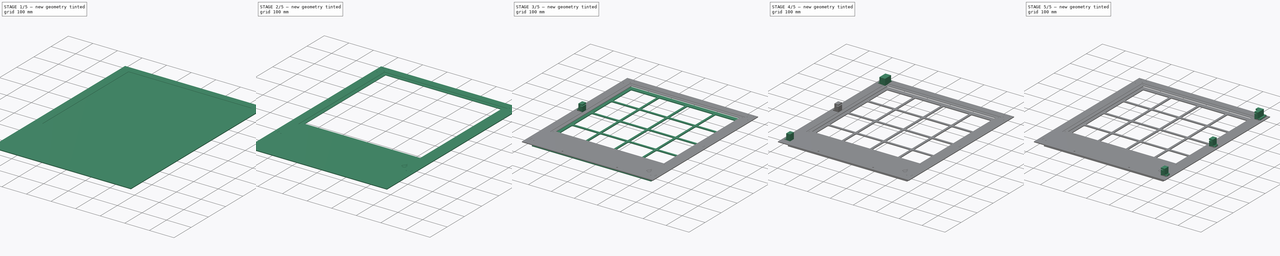
[diagram: build sequence overview — one tinted view per stage of 5, left to right]
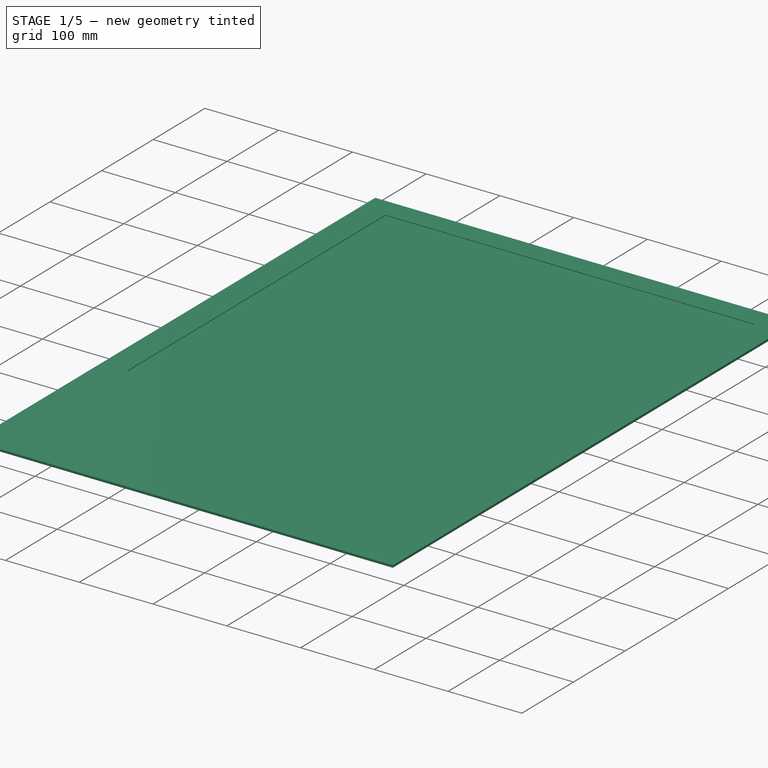
[diagram: stage 1 of 5 — iso view after this stage's code; geometry added in this stage tinted green]
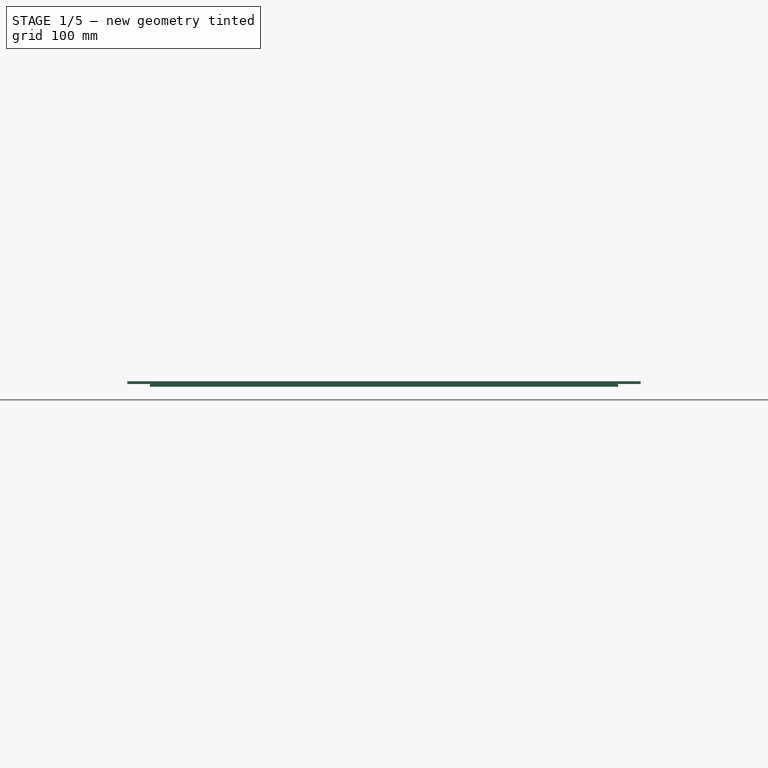
[diagram: stage 1 of 5 — front view after this stage's code; geometry added in this stage tinted green]
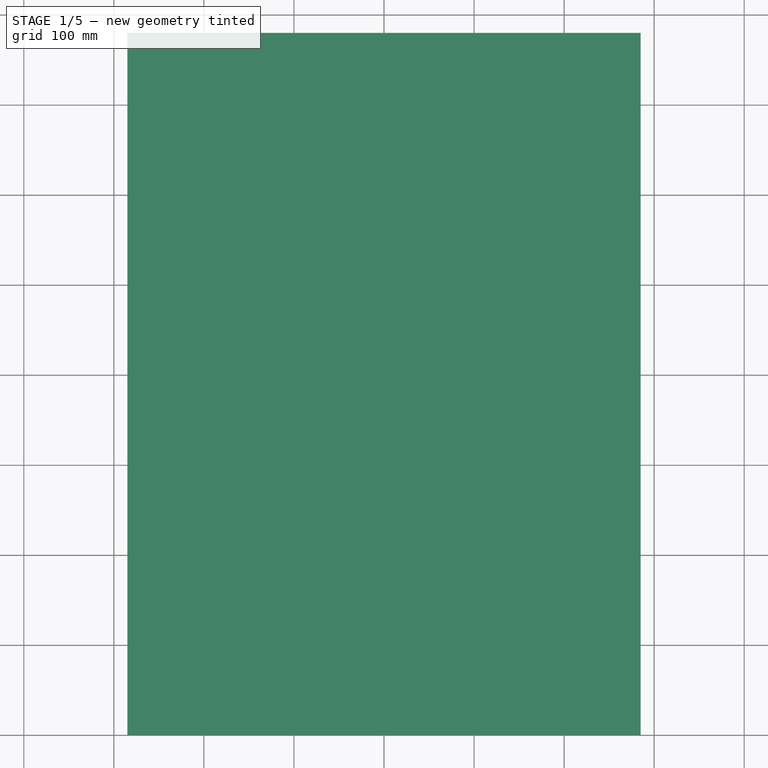
[diagram: stage 1 of 5 — top view after this stage's code; geometry added in this stage tinted green]
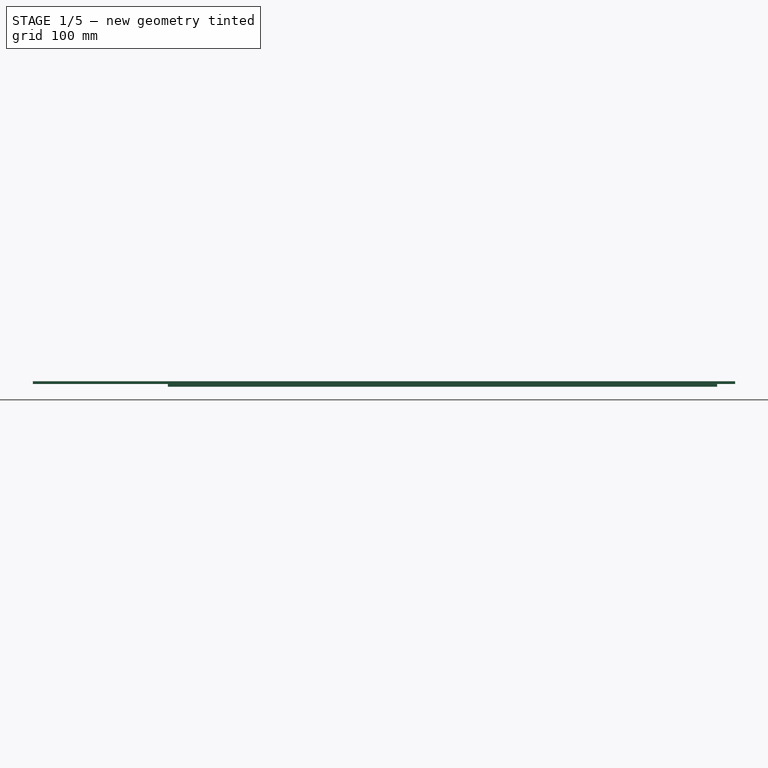
[diagram: stage 1 of 5 — right view after this stage's code; geometry added in this stage tinted green]
FCSTD DOCUMENT  (FreeCAD 0.17R13541 (Git))
Label: base
License: All rights reserved
LicenseURL: http://en.wikipedia.org/wiki/All_rights_reserved
objects: Sketcher::SketchObject×28, PartDesign::Pocket×21, PartDesign::Fillet×6, PartDesign::Body×5, PartDesign::Pad×4, Part::Mirroring×4, PartDesign::ShapeBinder×2, PartDesign::Mirrored×2, Drawing::FeatureViewPart×2, PartDesign::LinearPattern×1, PartDesign::FeatureBase×1, App::Part×1, Drawing::FeaturePage×1
note: 99 computed .brp shape members not serialized (recipe doc carries the construction recipe); baked Part::Feature solids carry a one-line shape summary decoded from their .brp

FEATURE [Sketcher::SketchObject] Sketch
  MapMode = 5
  Support = -> [XY_Plane]
  sketch-geometry (8):
    g0: LineSegment StartX=-260 StartY=260 StartZ=0 EndX=260 EndY=260 EndZ=0
    g1: LineSegment StartX=260 StartY=260 StartZ=0 EndX=260 EndY=-350 EndZ=0
    g2: LineSegment StartX=260 StartY=-350 StartZ=0 EndX=-260 EndY=-350 EndZ=0
    g3: LineSegment StartX=-260 StartY=-350 StartZ=0 EndX=-260 EndY=260 EndZ=0
    g4: LineSegment [constr] StartX=-250 StartY=250 StartZ=0 EndX=250 EndY=250 EndZ=0
    g5: LineSegment [constr] StartX=250 StartY=250 StartZ=0 EndX=250 EndY=-250 EndZ=0
    g6: LineSegment [constr] StartX=250 StartY=-250 StartZ=0 EndX=-250 EndY=-250 EndZ=0
    g7: LineSegment [constr] StartX=-250 StartY=-250 StartZ=0 EndX=-250 EndY=250 EndZ=0
  constraints (24):
    c: Coincident(g0,g1)
    c: Coincident(g1,g2)
    c: Coincident(g2,g3)
    c: Coincident(g3,g0)
    c: Horizontal(g0)
    c: Horizontal(g2)
    c: Vertical(g1)
    c: Vertical(g3)
    c: Coincident(g4,g5)
    c: Coincident(g5,g6)
    c: Coincident(g6,g7)
    c: Coincident(g7,g4)
    c: Horizontal(g4)
    c: Horizontal(g6)
    c: Vertical(g5)
    c: Vertical(g7)
    c: DistanceX(g4,g4) = 500
    c: Equal(g4,g5)
    c: DistanceY(g-1,g4) = 250
    c: DistanceX(g-1,g4) = 250
    c: DistanceX(g0,g4) = 10
    c: DistanceX(g4,g0) = 10
    c: DistanceY(g4,g0) = 10
    c: DistanceY(g1,g5) = 100
FEATURE [PartDesign::Pad] Pad
  Length = 3
  Length2 = 100
  Profile = -> Sketch
  Reversed = true
  Type = 0
FEATURE [Sketcher::SketchObject] Sketch001
  ExternalGeometry = -> [Pad]
  MapMode = 5
  Support = -> [Pad]
  sketch-geometry (27):
    g0: LineSegment [constr] StartX=-250 StartY=250 StartZ=0 EndX=250 EndY=250 EndZ=0
    g1: LineSegment [constr] StartX=250 StartY=250 StartZ=0 EndX=250 EndY=-250 EndZ=0
    g2: LineSegment [constr] StartX=250 StartY=-250 StartZ=0 EndX=-250 EndY=-250 EndZ=0
    g3: LineSegment [constr] StartX=-250 StartY=-250 StartZ=0 EndX=-250 EndY=250 EndZ=0
    g4: LineSegment StartX=-240 StartY=240 StartZ=0 EndX=-127.5 EndY=240 EndZ=0
    g5: LineSegment StartX=-127.5 StartY=240 StartZ=0 EndX=-127.5 EndY=127.5 EndZ=0
    g6: LineSegment StartX=-127.5 StartY=127.5 StartZ=0 EndX=-240 EndY=127.5 EndZ=0
    g7: LineSegment StartX=-240 StartY=127.5 StartZ=0 EndX=-240 EndY=240 EndZ=0
    g8: LineSegment StartX=-117.5 StartY=240 StartZ=0 EndX=-5 EndY=240 EndZ=0
    g9: LineSegment StartX=-5 StartY=240 StartZ=0 EndX=-5 EndY=127.5 EndZ=0
    g10: LineSegment StartX=-5 StartY=127.5 StartZ=0 EndX=-117.5 EndY=127.5 EndZ=0
    g11: LineSegment StartX=-117.5 StartY=127.5 StartZ=0 EndX=-117.5 EndY=240 EndZ=0
    g12: LineSegment StartX=5 StartY=240 StartZ=0 EndX=117.5 EndY=240 EndZ=0
    g13: LineSegment StartX=117.5 StartY=240 StartZ=0 EndX=117.5 EndY=127.5 EndZ=0
    g14: LineSegment StartX=117.5 StartY=127.5 StartZ=0 EndX=5 EndY=127.5 EndZ=0
    g15: LineSegment StartX=5 StartY=127.5 StartZ=0 EndX=5 EndY=240 EndZ=0
    g16: LineSegment StartX=127.5 StartY=240 StartZ=0 EndX=240 EndY=240 EndZ=0
    g17: LineSegment StartX=240 StartY=240 StartZ=0 EndX=240 EndY=127.5 EndZ=0
    g18: LineSegment StartX=240 StartY=127.5 StartZ=0 EndX=127.5 EndY=127.5 EndZ=0
    g19: LineSegment StartX=127.5 StartY=127.5 StartZ=0 EndX=127.5 EndY=240 EndZ=0
    g20: LineSegment [constr] StartX=-127.5 StartY=240 StartZ=0 EndX=-117.5 EndY=240 EndZ=0
    g21: LineSegment [constr] StartX=-5 StartY=240 StartZ=0 EndX=5 EndY=240 EndZ=0
    g22: LineSegment [constr] StartX=117.5 StartY=240 StartZ=0 EndX=127.5 EndY=240 EndZ=0
    g23: LineSegment [constr] StartX=-240 StartY=240 StartZ=0 EndX=-250 EndY=240 EndZ=0
    g24: LineSegment [constr] StartX=-240 StartY=240 StartZ=0 EndX=-240 EndY=250 EndZ=0
    g25: LineSegment [constr] StartX=240 StartY=240 StartZ=0 EndX=250 EndY=240 EndZ=0
    g26: LineSegment [constr] StartX=240 StartY=240 StartZ=0 EndX=240 EndY=250 EndZ=0
  constraints (80):
    c: Coincident(g0,g1)
    c: Coincident(g1,g2)
    c: Coincident(g2,g3)
    c: Coincident(g3,g0)
    c: Horizontal(g0)
    c: Horizontal(g2)
    c: Vertical(g1)
    c: Vertical(g3)
    c: DistanceX(g0,g0) = 500
    c: DistanceY(g1,g1) = 500
    c: DistanceY(g0,g-3) = 10
    c: DistanceX(g0,g-3) = 10
    c: Coincident(g4,g5)
    c: Coincident(g5,g6)
    c: Coincident(g6,g7)
    c: Coincident(g7,g4)
    c: Horizontal(g4)
    c: Horizontal(g6)
    c: Vertical(g5)
    c: Vertical(g7)
    c: Coincident(g8,g9)
    c: Coincident(g9,g10)
    c: Coincident(g10,g11)
    c: Coincident(g11,g8)
    c: Horizontal(g8)
    c: Horizontal(g10)
    c: Vertical(g9)
    c: Vertical(g11)
    c: Coincident(g12,g13)
    c: Coincident(g13,g14)
    c: Coincident(g14,g15)
    c: Coincident(g15,g12)
    c: Horizontal(g12)
    c: Horizontal(g14)
    c: Vertical(g13)
    c: Vertical(g15)
    c: Coincident(g16,g17)
    c: Coincident(g17,g18)
    c: Coincident(g18,g19)
    c: Coincident(g19,g16)
    c: Horizontal(g16)
    c: Horizontal(g18)
    c: Vertical(g17)
    c: Vertical(g19)
    c: Coincident(g20,g4)
    c: Coincident(g20,g8)
    c: Coincident(g21,g8)
    c: Coincident(g21,g12)
    c: Coincident(g22,g12)
    c: Coincident(g22,g16)
    c: Horizontal(g22)
    c: Equal(g20,g21)
    c: Equal(g21,g22)
    c: Horizontal(g21)
    c: Horizontal(g20)
    c: Equal(g4,g7)
    c: Equal(g7,g8)
    c: Equal(g8,g11)
    c: Equal(g11,g12)
    c: Equal(g12,g15)
    c: Equal(g15,g16)
    c: Equal(g16,g19)
    c: Coincident(g23,g4)
    c: PointOnObject(g23,g3)
    c: Horizontal(g23)
    c: Coincident(g24,g4)
    c: PointOnObject(g24,g0)
    c: Vertical(g24)
    c: Coincident(g25,g16)
    c: PointOnObject(g25,g1)
    c: Horizontal(g25)
    c: Coincident(g26,g16)
    c: PointOnObject(g26,g0)
    c: Vertical(g26)
    c: Equal(g21,g24)
    c: Equal(g24,g23)
    c: Equal(g23,g20)
    c: Equal(g26,g25)
    c: DistanceY(g24,g24) = 10
    c: DistanceX(g4,g4) = 112.5
FEATURE [PartDesign::Pocket] Pocket
  BaseFeature = -> Pad
  Length = 1
  Length2 = 100
  Profile = -> Sketch001
  Type = 1
FEATURE [PartDesign::LinearPattern] LinearPattern
  BaseFeature = -> Pocket
  Direction = -> Sketch001 [V_Axis]
  Length = 367.5
  Occurrences = 4
  Originals = -> [Pocket]
  Reversed = true
FEATURE [PartDesign::Fillet] Fillet
  Base = -> LinearPattern [Edge198,Edge194,Edge193,Edge190,Edge189,Edge192,Edge204,Edge201,Edge202,Edge203]
  BaseFeature = -> LinearPattern
  Radius = 3
FEATURE [PartDesign::Fillet] Fillet001
  Base = -> Fillet [Edge151,Edge135,Edge133,Edge145,Edge143,Edge141,Edge181,Edge186,Edge185,Edge183]
  BaseFeature = -> Fillet
  Radius = 4
FEATURE [PartDesign::Fillet] Fillet002
  Base = -> Fillet001 [Edge173,Edge157,Edge155,Edge165,Edge163,Edge168,Edge184,Edge183,Edge181,Edge179]
  BaseFeature = -> Fillet001
  Radius = 5
FEATURE [PartDesign::Body] Body  label="reticolo"
  Group = -> [Sketch,Pad,Sketch001,Pocket,LinearPattern,Fillet,Fillet001,Fillet002,Fillet003,Sketch002,Pocket001,Sketch003,Pocket002]
  Origin = -> Origin
  Placement = pos=(0,0,28) rot=(0,0,1;0rad)
  Tip = -> Pocket002
FEATURE [Sketcher::SketchObject] Sketch005
  MapMode = 5
  Support = -> [XY_Plane001]
  sketch-geometry (8):
    g0: LineSegment StartX=-285 StartY=280 StartZ=0 EndX=285 EndY=280 EndZ=0
    g1: LineSegment StartX=285 StartY=280 StartZ=0 EndX=285 EndY=-500 EndZ=0
    g2: LineSegment StartX=285 StartY=-500 StartZ=0 EndX=-285 EndY=-500 EndZ=0
    g3: LineSegment StartX=-285 StartY=-500 StartZ=0 EndX=-285 EndY=280 EndZ=0
    g4: LineSegment [constr] StartX=-275 StartY=250 StartZ=0 EndX=275 EndY=250 EndZ=0
    g5: LineSegment [constr] StartX=275 StartY=250 StartZ=0 EndX=275 EndY=-300 EndZ=0
    g6: LineSegment [constr] StartX=275 StartY=-300 StartZ=0 EndX=-275 EndY=-300 EndZ=0
    g7: LineSegment [constr] StartX=-275 StartY=-300 StartZ=0 EndX=-275 EndY=250 EndZ=0
  constraints (24):
    c: Coincident(g0,g1)
    c: Coincident(g1,g2)
    c: Coincident(g2,g3)
    c: Coincident(g3,g0)
    c: Horizontal(g0)
    c: Horizontal(g2)
    c: Vertical(g1)
    c: Vertical(g3)
    c: Coincident(g4,g5)
    c: Coincident(g5,g6)
    c: Coincident(g6,g7)
    c: Coincident(g7,g4)
    c: Horizontal(g4)
    c: Horizontal(g6)
    c: Vertical(g5)
    c: Vertical(g7)
    c: DistanceX(g4,g4) = 550
    c: Equal(g4,g5)
    c: DistanceY(g-1,g4) = 250
    c: DistanceX(g-1,g4) = 275
    c: DistanceX(g0,g4) = 10
    c: DistanceX(g4,g0) = 10
    c: DistanceY(g4,g0) = 30
    c: DistanceY(g1,g5) = 200
FEATURE [PartDesign::Pad] Pad001
  Length = 3
  Length2 = 100
  Profile = -> Sketch005
  Type = 0
FEATURE [Sketcher::SketchObject] Sketch006
  MapMode = 5
  Placement = pos=(0,0,3) rot=(0,0,1;0rad)
  Support = -> [Pad001]
  sketch-geometry (8):
    g0: LineSegment [constr] StartX=-260 StartY=260 StartZ=0 EndX=260 EndY=260 EndZ=0
    g1: LineSegment [constr] StartX=260 StartY=260 StartZ=0 EndX=260 EndY=-500 EndZ=0
    g2: LineSegment [constr] StartX=260 StartY=-500 StartZ=0 EndX=-260 EndY=-500 EndZ=0
    g3: LineSegment [constr] StartX=-260 StartY=-500 StartZ=0 EndX=-260 EndY=260 EndZ=0
    g4: LineSegment StartX=-250 StartY=250 StartZ=0 EndX=250 EndY=250 EndZ=0
    g5: LineSegment StartX=250 StartY=250 StartZ=0 EndX=250 EndY=-250 EndZ=0
    g6: LineSegment StartX=250 StartY=-250 StartZ=0 EndX=-250 EndY=-250 EndZ=0
    g7: LineSegment StartX=-250 StartY=-250 StartZ=0 EndX=-250 EndY=250 EndZ=0
  constraints (24):
    c: Coincident(g0,g1)
    c: Coincident(g1,g2)
    c: Coincident(g2,g3)
    c: Coincident(g3,g0)
    c: Horizontal(g0)
    c: Horizontal(g2)
    c: Vertical(g1)
    c: Vertical(g3)
    c: Coincident(g4,g5)
    c: Coincident(g5,g6)
    c: Coincident(g6,g7)
    c: Coincident(g7,g4)
    c: Horizontal(g4)
    c: Horizontal(g6)
    c: Vertical(g5)
    c: Vertical(g7)
    c: DistanceX(g4,g4) = 500
    c: Equal(g4,g5)
    c: DistanceY(g-1,g4) = 250
    c: DistanceX(g-1,g4) = 250
    c: DistanceX(g0,g4) = 10
    c: DistanceX(g4,g0) = 10
    c: DistanceY(g4,g0) = 10
    c: DistanceY(g1,g5) = 250
FEATURE [PartDesign::Pocket] Pocket004
  BaseFeature = -> Pad001
  Length = 1
  Length2 = 100
  Profile = -> Sketch006
  Type = 0
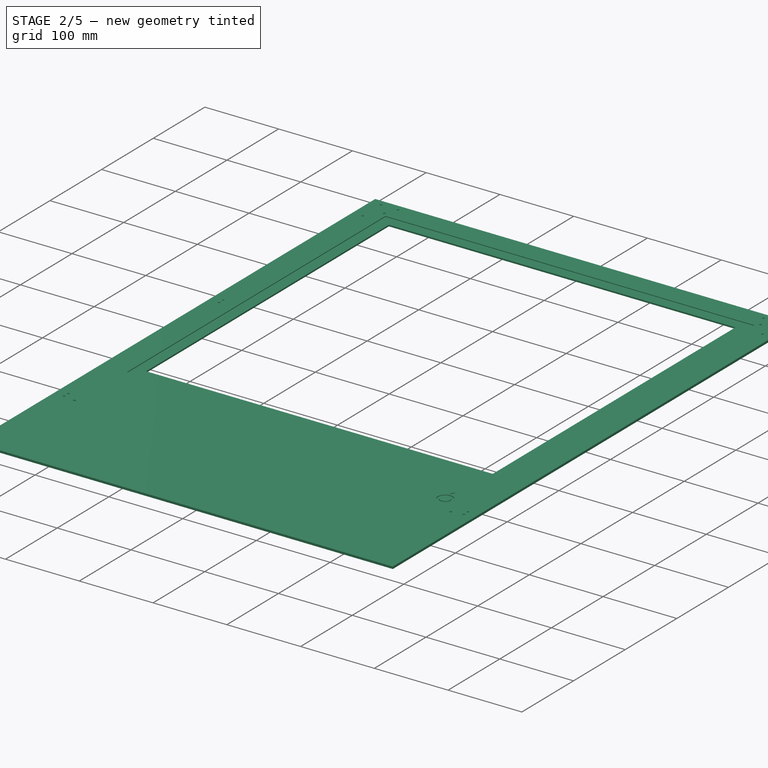
[diagram: stage 2 of 5 — iso view after this stage's code; geometry added in this stage tinted green]
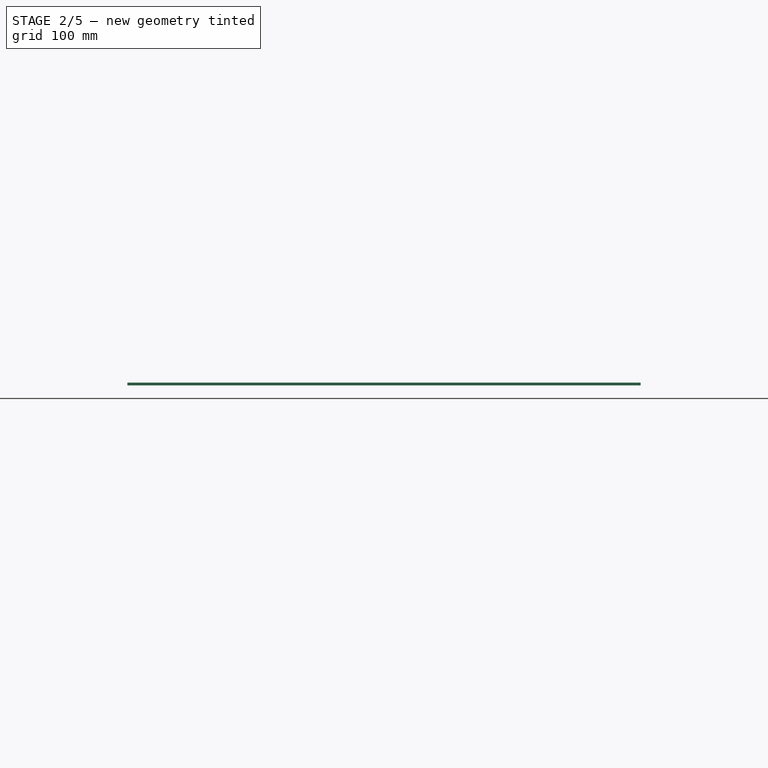
[diagram: stage 2 of 5 — front view after this stage's code; geometry added in this stage tinted green]
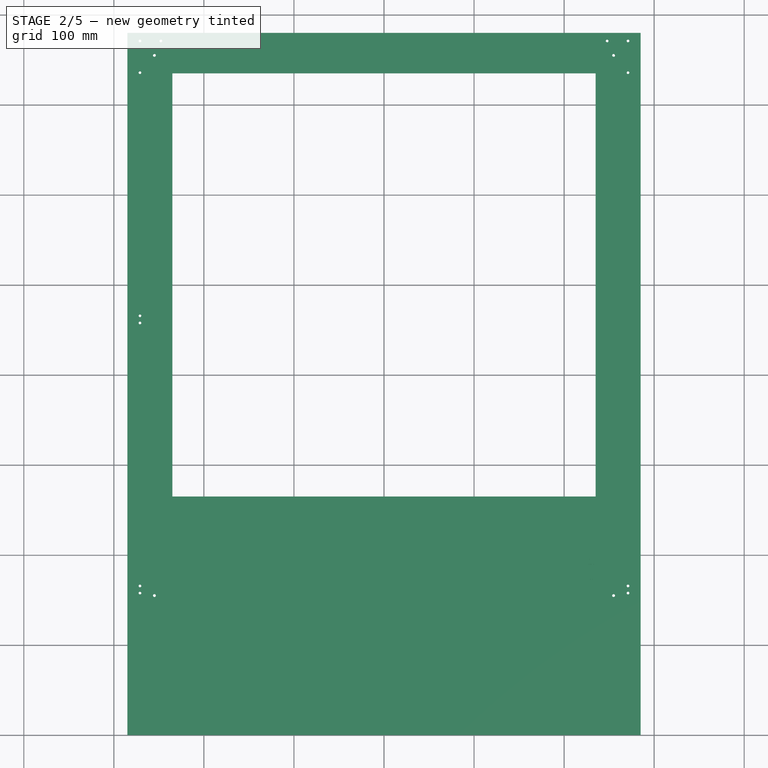
[diagram: stage 2 of 5 — top view after this stage's code; geometry added in this stage tinted green]
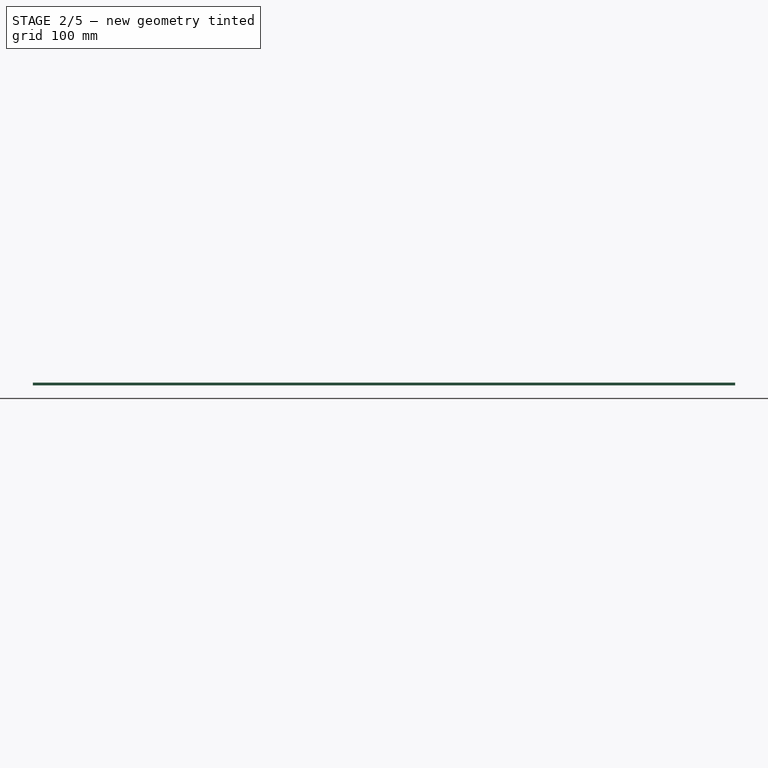
[diagram: stage 2 of 5 — right view after this stage's code; geometry added in this stage tinted green]
FEATURE [PartDesign::Fillet] Fillet003
  Base = -> Fillet002 [Edge163,Edge171,Edge174,Edge155,Edge153,Edge156,Edge147,Edge145,Edge148,Edge150]
  BaseFeature = -> Fillet002
  Radius = 6
FEATURE [Sketcher::SketchObject] Sketch002
  ExternalGeometry = -> [Fillet003]
  MapMode = 5
  Support = -> [Fillet003]
  sketch-geometry (5):
    g0: Circle CenterX=-255 CenterY=255 CenterZ=0 NormalX=0 NormalY=0 NormalZ=1 AngleXU=0 Radius=1.6
    g1: Circle CenterX=255 CenterY=255 CenterZ=0 NormalX=0 NormalY=0 NormalZ=1 AngleXU=0 Radius=1.6
    g2: Circle CenterX=255 CenterY=-345 CenterZ=0 NormalX=0 NormalY=0 NormalZ=1 AngleXU=0 Radius=1.6
    g3: Circle CenterX=-255 CenterY=-345 CenterZ=0 NormalX=0 NormalY=0 NormalZ=1 AngleXU=0 Radius=1.6
    g4: LineSegment [constr] StartX=-260 StartY=260 StartZ=0 EndX=-255 EndY=255 EndZ=0
  constraints (14):
    c: Equal(g0,g3)
    c: Equal(g3,g2)
    c: Equal(g2,g1)
    c: Radius(g0) = 1.6
    c: DistanceX(g-3,g0) = 5
    c: DistanceY(g0,g-3) = 5
    c: Coincident(g4,g-3)
    c: Coincident(g4,g0)
    c: DistanceX(g1,g-3) = 5
    c: DistanceY(g1,g-3) = 5
    c: DistanceY(g-4,g2) = 5
    c: DistanceX(g2,g-4) = 5
    c: DistanceX(g-4,g3) = 5
    c: DistanceY(g-4,g3) = 5
FEATURE [PartDesign::Pocket] Pocket001
  BaseFeature = -> Fillet003
  Length = 5
  Length2 = 100
  Profile = -> Sketch002
  Type = 0
FEATURE [Sketcher::SketchObject] Sketch007
  ExternalGeometry = -> [Pocket001]
  MapMode = 5
  Placement = pos=(0,0,3) rot=(0,0,1;0rad)
  Support = -> [Pocket004]
  sketch-geometry (6):
    g0: Circle CenterX=230 CenterY=-320 CenterZ=0 NormalX=0 NormalY=0 NormalZ=1 AngleXU=0 Radius=10
    g1: Circle CenterX=230 CenterY=-320 CenterZ=0 NormalX=0 NormalY=0 NormalZ=1 AngleXU=0 Radius=7
    g2: LineSegment StartX=230 StartY=-301 StartZ=0 EndX=226.536 EndY=-307 EndZ=0
    g3: LineSegment StartX=226.536 StartY=-307 StartZ=0 EndX=233.464 EndY=-307 EndZ=0
    g4: LineSegment StartX=233.464 StartY=-307 StartZ=0 EndX=230 EndY=-301 EndZ=0
    g5: Circle [constr] CenterX=230 CenterY=-305 CenterZ=0 NormalX=0 NormalY=0 NormalZ=1 AngleXU=0 Radius=4
  constraints (17):
    c: Coincident(g1,g0)
    c: Radius(g0) = 10
    c: Radius(g1) = 7
    c: Coincident(g2,g3)
    c: Coincident(g3,g4)
    c: Coincident(g4,g2)
    c: Equal(g2,g3)
    c: Equal(g2,g4)
    c: PointOnObject(g2,g5)
    c: PointOnObject(g3,g5)
    c: PointOnObject(g4,g5)
    c: Horizontal(g3)
    c: Radius(g5) = 4
    c: DistanceX(g0,g5) = 0
    c: DistanceY(g0,g5) = 15
    c: DistanceY(g0,g-4) = 580
    c: DistanceX(g0,g-4) = 30
FEATURE [PartDesign::Pocket] Pocket005
  BaseFeature = -> Pocket004
  Length = 1
  Length2 = 100
  Profile = -> Sketch007
  Type = 0
FEATURE [Sketcher::SketchObject] Sketch008
  ExternalGeometry = -> [Fillet003]
  MapMode = 5
  Placement = pos=(0,0,3) rot=(0,0,1;0rad)
  Support = -> [Pocket005]
  sketch-geometry (5):
    g0: Circle CenterX=-255 CenterY=255 CenterZ=0 NormalX=0 NormalY=0 NormalZ=1 AngleXU=0 Radius=1.6
    g1: Circle CenterX=255 CenterY=255 CenterZ=0 NormalX=0 NormalY=0 NormalZ=1 AngleXU=0 Radius=1.6
    g2: Circle CenterX=255 CenterY=-345 CenterZ=0 NormalX=0 NormalY=0 NormalZ=1 AngleXU=0 Radius=1.6
    g3: Circle CenterX=-255 CenterY=-345 CenterZ=0 NormalX=0 NormalY=0 NormalZ=1 AngleXU=0 Radius=1.6
    g4: LineSegment [constr] StartX=-260 StartY=260 StartZ=0 EndX=-255 EndY=255 EndZ=0
  constraints (14):
    c: Equal(g0,g3)
    c: Equal(g3,g2)
    c: Equal(g2,g1)
    c: Radius(g0) = 1.6
    c: DistanceX(g-3,g0) = 5
    c: DistanceY(g0,g-3) = 5
    c: Coincident(g4,g-3)
    c: Coincident(g4,g0)
    c: DistanceX(g1,g-3) = 5
    c: DistanceY(g1,g-3) = 5
    c: DistanceY(g-4,g2) = 5
    c: DistanceX(g2,g-4) = 5
    c: DistanceX(g-4,g3) = 5
    c: DistanceY(g-4,g3) = 5
FEATURE [PartDesign::Pocket] Pocket006
  BaseFeature = -> Pocket005
  Length = 5
  Length2 = 100
  Profile = -> Sketch008
  Type = 1
FEATURE [Sketcher::SketchObject] Sketch009
  ExternalGeometry = -> [Pocket006]
  MapMode = 5
  Placement = pos=(0,0,2) rot=(0,0,1;0rad)
  Support = -> [Pocket006]
  sketch-geometry (8):
    g0: LineSegment StartX=-235 StartY=235 StartZ=0 EndX=235 EndY=235 EndZ=0
    g1: LineSegment StartX=235 StartY=235 StartZ=0 EndX=235 EndY=-235 EndZ=0
    g2: LineSegment StartX=235 StartY=-235 StartZ=0 EndX=-235 EndY=-235 EndZ=0
    g3: LineSegment StartX=-235 StartY=-235 StartZ=0 EndX=-235 EndY=235 EndZ=0
    g4: LineSegment [constr] StartX=-250 StartY=250 StartZ=0 EndX=-235 EndY=235 EndZ=0
    g5: LineSegment [constr] StartX=250 StartY=250 StartZ=0 EndX=235 EndY=235 EndZ=0
    g6: LineSegment [constr] StartX=-250 StartY=-250 StartZ=0 EndX=-235 EndY=-235 EndZ=0
    g7: LineSegment [constr] StartX=250 StartY=-250 StartZ=0 EndX=235 EndY=-235 EndZ=0
  constraints (21):
    c: Coincident(g0,g1)
    c: Coincident(g1,g2)
    c: Coincident(g2,g3)
    c: Coincident(g3,g0)
    c: Horizontal(g0)
    c: Horizontal(g2)
    c: Vertical(g1)
    c: Vertical(g3)
    c: Coincident(g4,g-3)
    c: Coincident(g4,g0)
    c: Coincident(g5,g-3)
    c: Coincident(g5,g0)
    c: Coincident(g6,g-4)
    c: Coincident(g6,g2)
    c: Coincident(g7,g-4)
    c: Coincident(g7,g1)
    c: Equal(g6,g7)
    c: Equal(g7,g4)
    c: Equal(g4,g5)
    c: DistanceY(g0,g4) = 15
    c: DistanceX(g4,g0) = 15
FEATURE [PartDesign::Pocket] Pocket007
  BaseFeature = -> Pocket006
  Length = 5
  Length2 = 100
  Profile = -> Sketch009
  Type = 0
FEATURE [Sketcher::SketchObject] Sketch027
  MapMode = 5
  Placement = pos=(0,0,5) rot=(0,0,1;0rad)
  Support = -> [Pocket016]
  sketch-geometry (3):
    g0: Circle CenterX=-271 CenterY=271 CenterZ=0 NormalX=0 NormalY=0 NormalZ=1 AngleXU=0 Radius=1.5
    g1: Circle CenterX=-247.791 CenterY=271 CenterZ=0 NormalX=0 NormalY=0 NormalZ=1 AngleXU=0 Radius=1.5
    g2: Circle CenterX=-271 CenterY=235.791 CenterZ=0 NormalX=0 NormalY=0 NormalZ=1 AngleXU=0 Radius=1.5
  constraints (3):
    c: Radius(g2) = 1.5
    c: Equal(g2,g0)
    c: Equal(g2,g1)
FEATURE [PartDesign::ShapeBinder] CopyFillet004
FEATURE [Sketcher::SketchObject] Sketch028
  MapMode = 5
  Placement = pos=(0,0,5) rot=(0,0,1;0rad)
  Support = -> [CopyFillet004]
FEATURE [PartDesign::Body] Body004  label="supporto003"
  Group = -> [Sketch021,Pad004,Sketch022,Pocket012,Sketch023,Pocket013,Sketch024,Pocket014,Fillet005,Sketch025,Pocket015,Sketch026,Pocket016,Sketch027,CopyFillet004,Sketch028]
  Origin = -> Origin004
  Placement = pos=(0,0,3) rot=(0,0,1;0rad)
  Tip = -> Pocket016
FEATURE [Sketcher::SketchObject] Sketch029
  ExternalGeometry = -> [Fillet004]
  MapMode = 5
  Placement = pos=(0,0,5) rot=(0,0,1;0rad)
  Support = -> [Fillet004]
  sketch-geometry (2):
    g0: Circle CenterX=-271 CenterY=-334.32 CenterZ=0 NormalX=0 NormalY=0 NormalZ=1 AngleXU=0 Radius=1.5
    g1: Circle CenterX=-271 CenterY=-342.207 CenterZ=0 NormalX=0 NormalY=0 NormalZ=1 AngleXU=0 Radius=1.5
  constraints (2):
    c: Radius(g0) = 1.5
    c: Equal(g0,g1)
FEATURE [PartDesign::Body] Body002  label="supporto1"
  Group = -> [Sketch010,Pad002,Sketch011,Pocket008,Sketch012,Pocket009,Sketch013,Pocket010,Sketch014,Pocket011,Fillet004,Sketch029]
  Origin = -> Origin002
  Placement = pos=(0,0,3) rot=(0,0,1;0rad)
  Tip = -> Fillet004
FEATURE [Sketcher::SketchObject] Sketch030
  MapMode = 5
  Placement = pos=(0,0,3) rot=(0,0,1;0rad)
  Support = -> [Pocket007]
  sketch-geometry (5):
    g0: Circle CenterX=-271 CenterY=271 CenterZ=0 NormalX=0 NormalY=0 NormalZ=1 AngleXU=0 Radius=1.5
    g1: Circle CenterX=-247.791 CenterY=271 CenterZ=0 NormalX=0 NormalY=0 NormalZ=1 AngleXU=0 Radius=1.5
    g2: Circle CenterX=-271 CenterY=235.791 CenterZ=0 NormalX=0 NormalY=0 NormalZ=1 AngleXU=0 Radius=1.5
    g3: Circle CenterX=-271 CenterY=-334.32 CenterZ=0 NormalX=0 NormalY=0 NormalZ=1 AngleXU=0 Radius=1.5
    g4: Circle CenterX=-271 CenterY=-342.207 CenterZ=0 NormalX=0 NormalY=0 NormalZ=1 AngleXU=0 Radius=1.5
  constraints (5):
    c: Radius(g2) = 1.5
    c: Equal(g2,g0)
    c: Equal(g2,g1)
    c: Radius(g3) = 1.5
    c: Equal(g3,g4)
FEATURE [PartDesign::Pocket] Pocket017
  BaseFeature = -> Pocket007
  Length = 5
  Length2 = 100
  Profile = -> Sketch030
  Type = 1
FEATURE [PartDesign::Mirrored] Mirrored
  BaseFeature = -> Pocket017
  MirrorPlane = -> Sketch030 [V_Axis]
  Originals = -> [Pocket017]
FEATURE [PartDesign::ShapeBinder] CopyClone
  Placement = pos=(0,300,0) rot=(0,0,1;0rad)
FEATURE [Sketcher::SketchObject] Sketch031
  MapMode = 5
  Placement = pos=(0,300,5) rot=(0,0,1;0rad)
  Support = -> [CopyClone]
  sketch-geometry (2):
    g0: Circle CenterX=-271 CenterY=-334.32 CenterZ=0 NormalX=0 NormalY=0 NormalZ=1 AngleXU=0 Radius=1.5
    g1: Circle CenterX=-271 CenterY=-342.207 CenterZ=0 NormalX=0 NormalY=0 NormalZ=1 AngleXU=0 Radius=1.5
  constraints (2):
    c: Radius(g0) = 1.5
    c: Equal(g0,g1)
FEATURE [PartDesign::Pocket] Pocket018
  BaseFeature = -> Mirrored
  Length = 5
  Length2 = 100
  Profile = -> Sketch031
  Type = 0
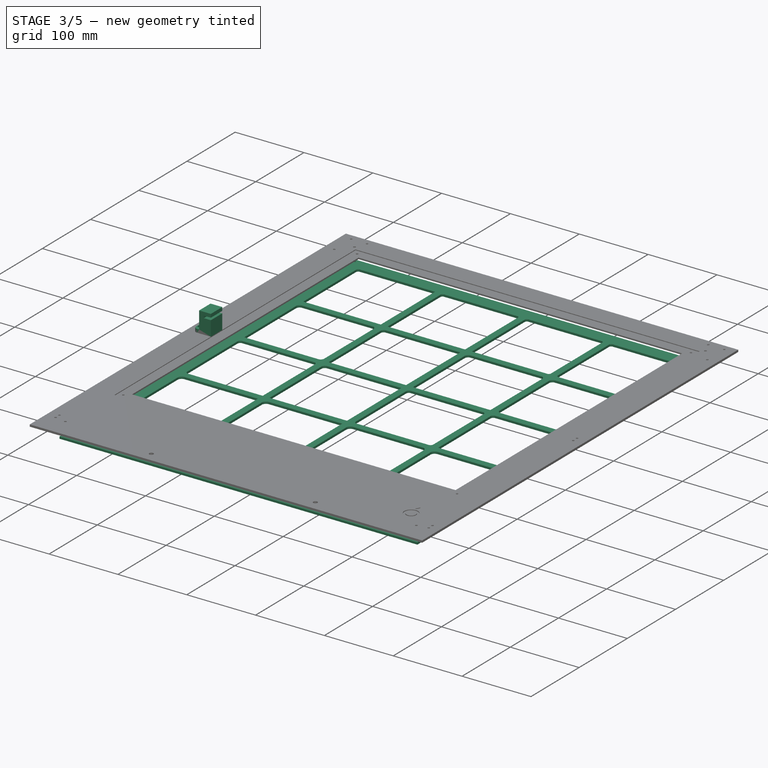
[diagram: stage 3 of 5 — iso view after this stage's code; geometry added in this stage tinted green]
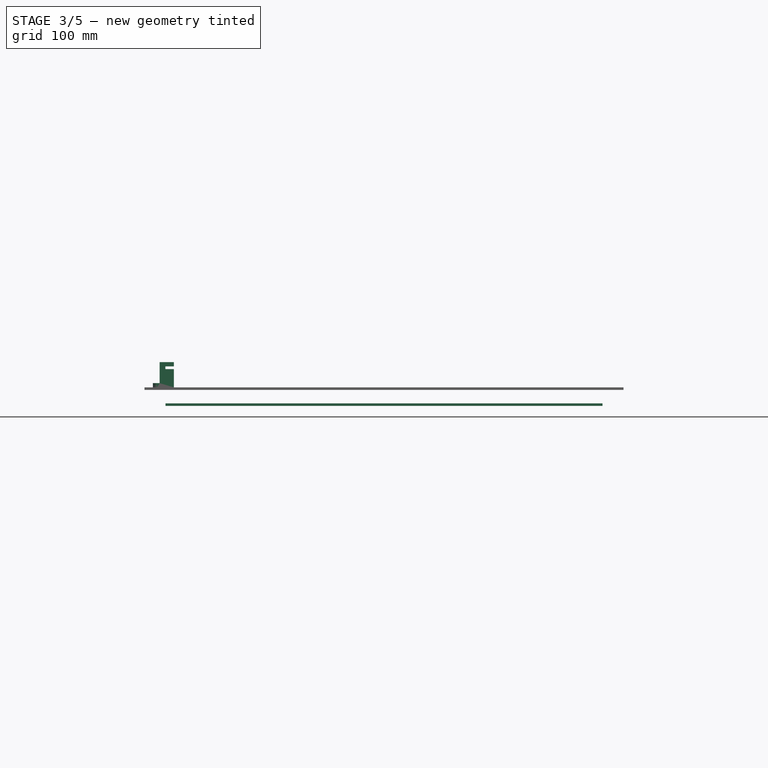
[diagram: stage 3 of 5 — front view after this stage's code; geometry added in this stage tinted green]
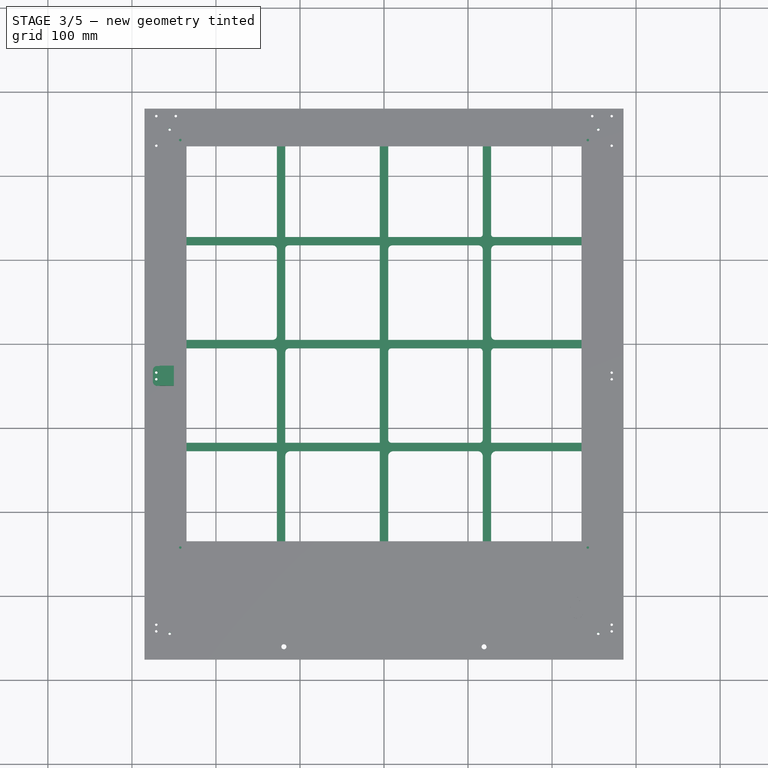
[diagram: stage 3 of 5 — top view after this stage's code; geometry added in this stage tinted green]
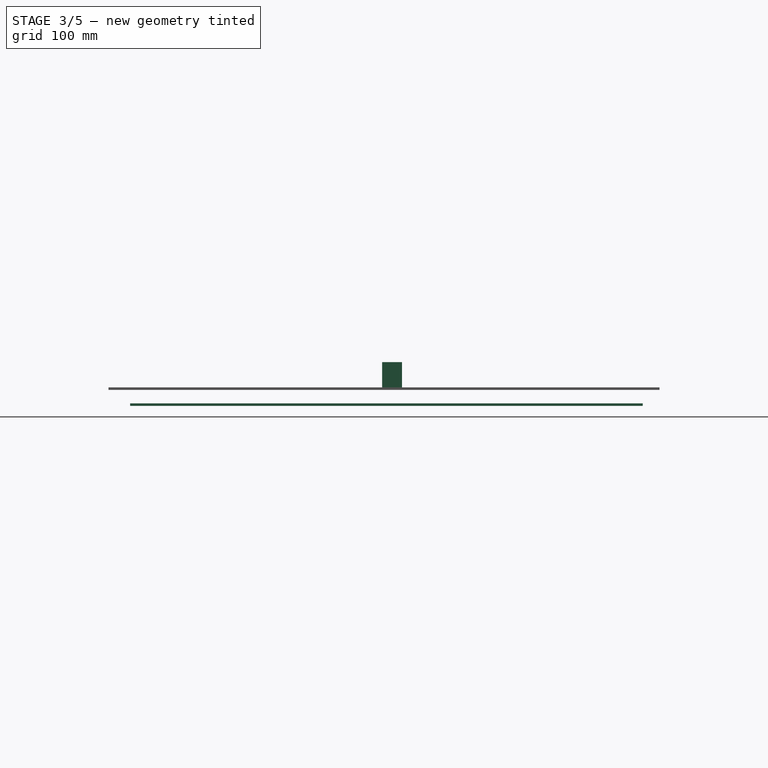
[diagram: stage 3 of 5 — right view after this stage's code; geometry added in this stage tinted green]
FEATURE [Sketcher::SketchObject] Sketch003
  ExternalGeometry = -> [Pocket001]
  MapMode = 5
  Support = -> [Pocket001]
  sketch-geometry (6):
    g0: Circle CenterX=230 CenterY=-320 CenterZ=0 NormalX=0 NormalY=0 NormalZ=1 AngleXU=0 Radius=10
    g1: Circle CenterX=230 CenterY=-320 CenterZ=0 NormalX=0 NormalY=0 NormalZ=1 AngleXU=0 Radius=7
    g2: LineSegment StartX=230 StartY=-301 StartZ=0 EndX=226.536 EndY=-307 EndZ=0
    g3: LineSegment StartX=226.536 StartY=-307 StartZ=0 EndX=233.464 EndY=-307 EndZ=0
    g4: LineSegment StartX=233.464 StartY=-307 StartZ=0 EndX=230 EndY=-301 EndZ=0
    g5: Circle [constr] CenterX=230 CenterY=-305 CenterZ=0 NormalX=0 NormalY=0 NormalZ=1 AngleXU=0 Radius=4
  constraints (17):
    c: Coincident(g1,g0)
    c: Radius(g0) = 10
    c: Radius(g1) = 7
    c: Coincident(g2,g3)
    c: Coincident(g3,g4)
    c: Coincident(g4,g2)
    c: Equal(g2,g3)
    c: Equal(g2,g4)
    c: PointOnObject(g2,g5)
    c: PointOnObject(g3,g5)
    c: PointOnObject(g4,g5)
    c: Horizontal(g3)
    c: Radius(g5) = 4
    c: DistanceX(g0,g5) = 0
    c: DistanceY(g0,g5) = 15
    c: DistanceY(g0,g-4) = 580
    c: DistanceX(g0,g-4) = 30
FEATURE [PartDesign::Pocket] Pocket002
  BaseFeature = -> Pocket001
  Length = 1.2
  Length2 = 100
  Profile = -> Sketch003
  Type = 0
FEATURE [PartDesign::FeatureBase] Clone
  Placement = pos=(0,300,3) rot=(0,0,1;0rad)
FEATURE [PartDesign::Mirrored] Mirrored001
  BaseFeature = -> Pocket018
  MirrorPlane = -> Sketch031 [V_Axis]
  Originals = -> [Pocket018]
FEATURE [Part::Mirroring] Part__Mirroring003  label="Pocket002 (Mirror #4)"
  Base = (0,0,0)
  Normal = (0,0,1)
  Placement = pos=(0,0,-19) rot=(0,0,1;0rad)
  Source = -> Pocket002
FEATURE [Sketcher::SketchObject] Sketch032
  ExternalGeometry = -> [Mirrored001]
  MapMode = 5
  Placement = pos=(0,0,2) rot=(0,0,1;0rad)
  Support = -> [Mirrored001]
  sketch-geometry (12):
    g0: Circle CenterX=-242.5 CenterY=242.5 CenterZ=0 NormalX=0 NormalY=0 NormalZ=1 AngleXU=0 Radius=1.5
    g1: Circle CenterX=242.5 CenterY=242.5 CenterZ=0 NormalX=0 NormalY=0 NormalZ=1 AngleXU=0 Radius=1.5
    g2: Circle CenterX=-242.5 CenterY=-242.5 CenterZ=0 NormalX=0 NormalY=0 NormalZ=1 AngleXU=0 Radius=1.5
    g3: Circle CenterX=242.5 CenterY=-242.5 CenterZ=0 NormalX=0 NormalY=0 NormalZ=1 AngleXU=0 Radius=1.5
    g4: LineSegment [constr] StartX=-235 StartY=-235 StartZ=0 EndX=-242.5 EndY=-242.5 EndZ=0
    g5: LineSegment [constr] StartX=-242.5 StartY=-242.5 StartZ=0 EndX=-250 EndY=-250 EndZ=0
    g6: LineSegment [constr] StartX=235 StartY=-235 StartZ=0 EndX=242.5 EndY=-242.5 EndZ=0
    g7: LineSegment [constr] StartX=242.5 StartY=-242.5 StartZ=0 EndX=250 EndY=-250 EndZ=0
    g8: LineSegment [constr] StartX=250 StartY=250 StartZ=0 EndX=242.5 EndY=242.5 EndZ=0
    g9: LineSegment [constr] StartX=242.5 StartY=242.5 StartZ=0 EndX=235 EndY=235 EndZ=0
    g10: LineSegment [constr] StartX=-250 StartY=250 StartZ=0 EndX=-242.5 EndY=242.5 EndZ=0
    g11: LineSegment [constr] StartX=-242.5 StartY=242.5 StartZ=0 EndX=-235 EndY=235 EndZ=0
  constraints (28):
    c: Coincident(g-6,g4)
    c: Coincident(g4,g2)
    c: Coincident(g4,g5)
    c: Coincident(g5,g-4)
    c: Parallel(g4,g5)
    c: Equal(g4,g5)
    c: Coincident(g-6,g6)
    c: Coincident(g6,g3)
    c: Coincident(g6,g7)
    c: Coincident(g7,g-4)
    c: Equal(g6,g7)
    c: Parallel(g6,g7)
    c: Coincident(g-5,g8)
    c: Coincident(g8,g1)
    c: Coincident(g8,g9)
    c: Coincident(g9,g-3)
    c: Equal(g9,g8)
    c: Parallel(g9,g8)
    c: Coincident(g-5,g10)
    c: Coincident(g10,g0)
    c: Coincident(g10,g11)
    c: Coincident(g11,g-3)
    c: Equal(g10,g11)
    c: Parallel(g10,g11)
    c: Radius(g0) = 1.5
    c: Equal(g0,g1)
    c: Equal(g0,g2)
    c: Equal(g0,g3)
FEATURE [PartDesign::Pocket] Pocket019
  BaseFeature = -> Mirrored001
  Length = 5
  Length2 = 100
  Profile = -> Sketch032
  Type = 1
FEATURE [App::Part] Part
  Group = -> [CloneBody]
  License = CC BY 3.0
  LicenseURL = http://creativecommons.org/licenses/by/3.0/
  Origin = -> Origin005
FEATURE [Sketcher::SketchObject] Sketch033
  MapMode = 5
  Placement = pos=(0,0,3) rot=(0,0,1;0rad)
  Support = -> [Pocket019]
  sketch-geometry (4):
    g0: LineSegment StartX=-303.506 StartY=-375.819 StartZ=0 EndX=302.856 EndY=-375.819 EndZ=0
    g1: LineSegment StartX=302.856 StartY=-375.819 StartZ=0 EndX=302.856 EndY=-522.412 EndZ=0
    g2: LineSegment StartX=302.856 StartY=-522.412 StartZ=0 EndX=-303.506 EndY=-522.412 EndZ=0
    g3: LineSegment StartX=-303.506 StartY=-522.412 StartZ=0 EndX=-303.506 EndY=-375.819 EndZ=0
  constraints (8):
    c: Coincident(g0,g1)
    c: Coincident(g1,g2)
    c: Coincident(g2,g3)
    c: Coincident(g3,g0)
    c: Horizontal(g0)
    c: Horizontal(g2)
    c: Vertical(g1)
    c: Vertical(g3)
FEATURE [PartDesign::Pocket] Pocket020
  BaseFeature = -> Pocket019
  Length = 5
  Length2 = 100
  Profile = -> Sketch033
  Type = 0
FEATURE [Sketcher::SketchObject] Sketch034
  ExternalGeometry = -> [Pocket020]
  MapMode = 5
  Placement = pos=(0,0,3) rot=(0,0,1;0rad)
  Support = -> [Pocket020]
  sketch-geometry (5):
    g0: LineSegment [constr] StartX=-285 StartY=-375.819 StartZ=0 EndX=-119.132 EndY=-360.561 EndZ=0
    g1: LineSegment [constr] StartX=-119.132 StartY=-360.561 StartZ=0 EndX=119.132 EndY=-360.561 EndZ=0
    g2: LineSegment [constr] StartX=119.132 StartY=-360.561 StartZ=0 EndX=285 EndY=-375.819 EndZ=0
    g3: Circle CenterX=-119.132 CenterY=-360.561 CenterZ=0 NormalX=0 NormalY=0 NormalZ=1 AngleXU=0 Radius=3
    g4: Circle CenterX=119.132 CenterY=-360.561 CenterZ=0 NormalX=0 NormalY=0 NormalZ=1 AngleXU=0 Radius=3
  constraints (10):
    c: Coincident(g-3,g0)
    c: Coincident(g0,g1)
    c: Horizontal(g1)
    c: Coincident(g1,g2)
    c: Coincident(g2,g-3)
    c: Equal(g0,g2)
    c: Coincident(g3,g0)
    c: Coincident(g4,g1)
    c: Equal(g3,g4)
    c: Radius(g3) = 3
FEATURE [PartDesign::Pocket] Pocket021
  BaseFeature = -> Pocket020
  Length = 5
  Length2 = 100
  Profile = -> Sketch034
  Type = 0
FEATURE [PartDesign::Body] Body001  label="base"
  Group = -> [Sketch005,Pad001,Sketch006,Pocket004,Sketch007,Pocket005,Sketch008,Pocket006,Sketch009,Pocket007,Sketch030,Pocket017,Mirrored,CopyClone,Sketch031,Pocket018,Mirrored001,Sketch032,Pocket019,Sketch033,Pocket020,Sketch034,Pocket021]
  Origin = -> Origin001
  Tip = -> Pocket021
FEATURE [Drawing::FeatureViewPart] Ortho  label="Ortho_0_0"
  Direction = (1,0,0)
  HiddenWidth = 0.15
  LineWidth = 0.35
  Rotation = -90
  ShowHiddenLines = false
  ShowSmoothLines = false
  Source = -> Body001
  Tolerance = 0.05
  ViewResult = <g id="Ortho_0_0"\n   transform="rotate(-90,709.5,708.333) translate(709.5,708.333) scale(1,1)"\n  >\n<g   fill="none"\n   stroke="rgb(0, 0, 0)"\n   stroke-linecap="butt"\n   stroke-linejoin="miter"\n   stroke-width="0.350000"\n   transform="scale(1,-1)"\n  >\n<path id= "1" d=" M 0 -280 L 3 -280 " />\n<path id= "2" d=" M 0 -280 L 0 375.819 " />\n<path id= "3" d=" M 3 375.819 L 0 375.819 " />\n<path id= "4" d=" M 3 -280 L 3 375.819 " />\n</g>\n</g>
  Visible = true
  X = 709.5
  Y = 708.333
FEATURE [Drawing::FeatureViewPart] Ortho001  label="Ortho_0_1"
  Direction = (0,0,1)
  HiddenWidth = 0.15
  LineWidth = 0.35
  Rotation = 90
  ShowHiddenLines = false
  ShowSmoothLines = false
  Source = -> Body001
  Tolerance = 0.05
  ViewResult = <blob: 2091 chars omitted>
  Visible = true
  X = 709.5
  Y = 357.667
FEATURE [Drawing::FeaturePage] Page
  EditableTexts = AUTHOR NAME | DRAWING TITLE | FreeCAD DRAWING | A0 | X / Y | SCALE | PN | DN | DD/MM/YYYY | REV A
  Group = -> [Ortho,Ortho001]
  Template = <path>
note: 1 file-system path scrubbed to <path> (originals preserved in the JSON sidecar)
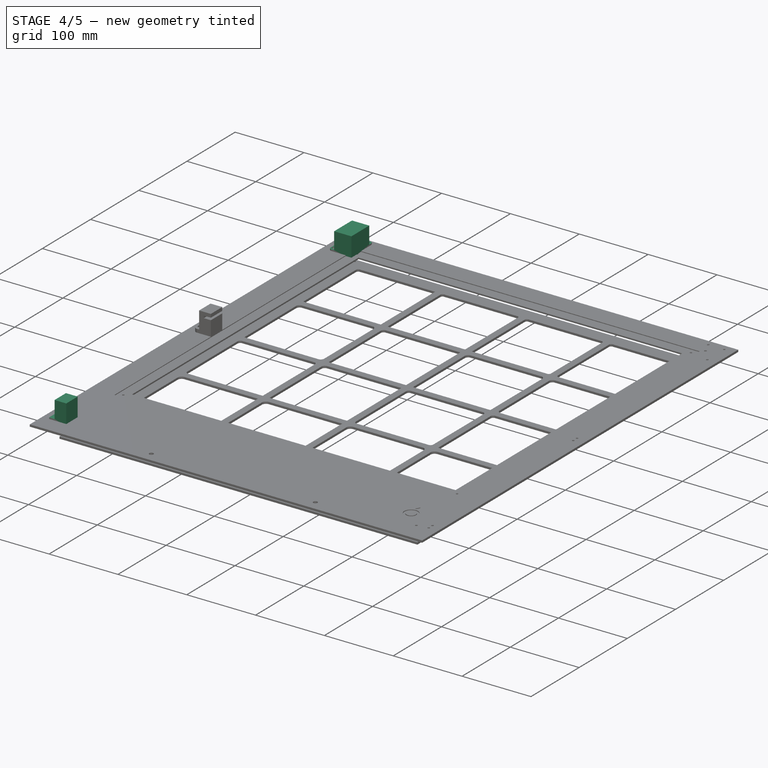
[diagram: stage 4 of 5 — iso view after this stage's code; geometry added in this stage tinted green]
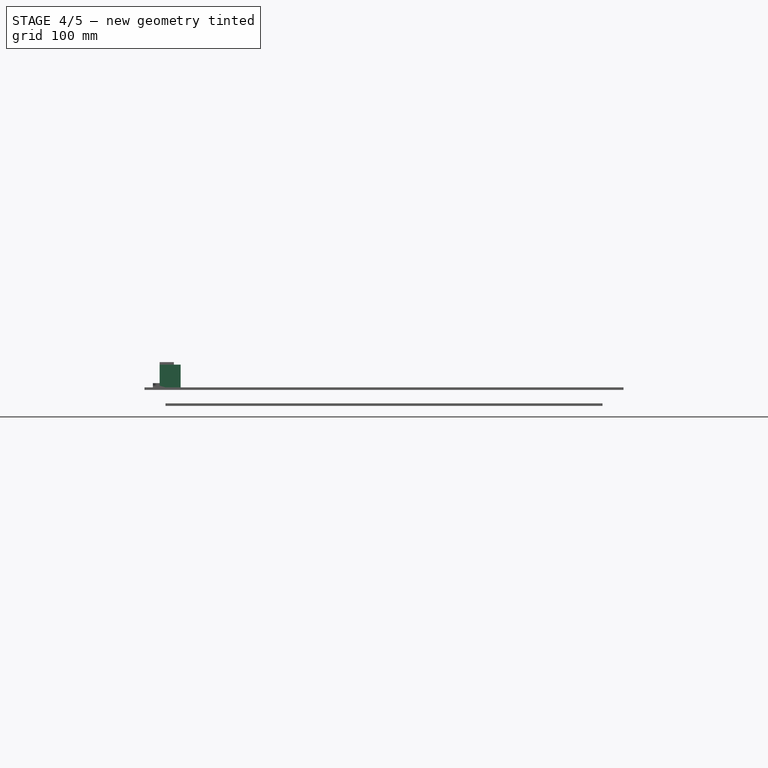
[diagram: stage 4 of 5 — front view after this stage's code; geometry added in this stage tinted green]
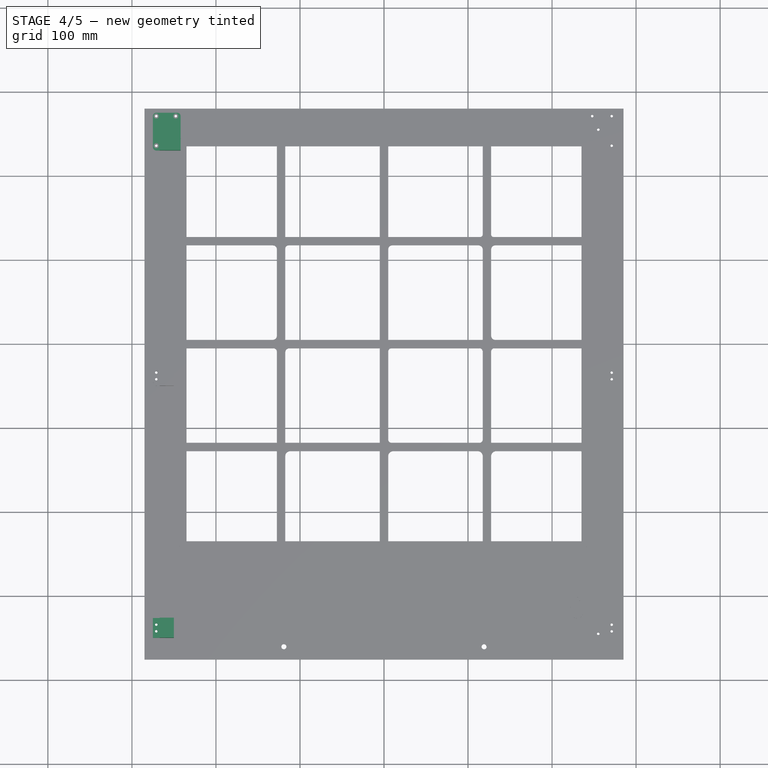
[diagram: stage 4 of 5 — top view after this stage's code; geometry added in this stage tinted green]
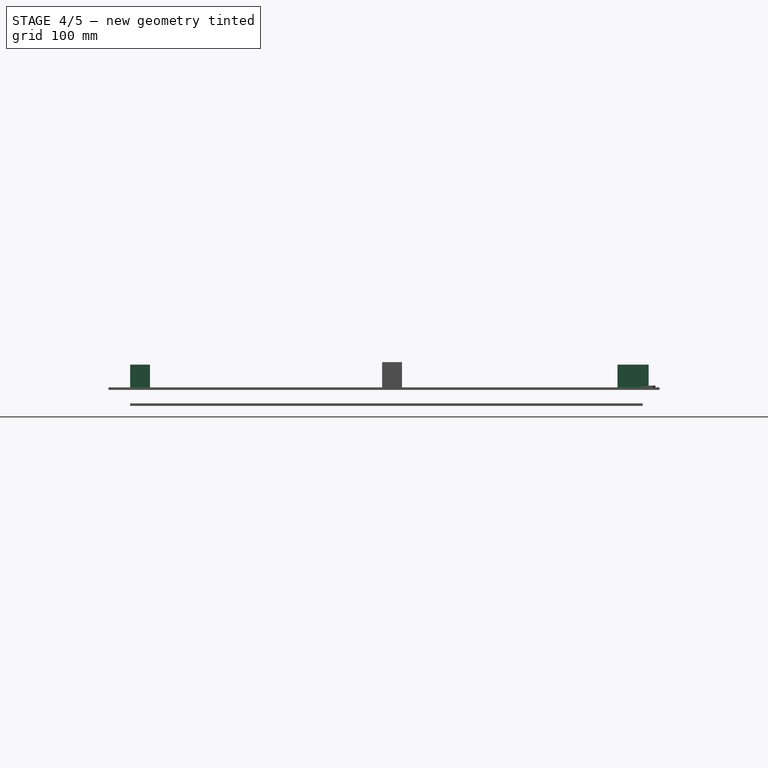
[diagram: stage 4 of 5 — right view after this stage's code; geometry added in this stage tinted green]
FEATURE [Sketcher::SketchObject] Sketch010
  MapMode = 5
  Support = -> [XY_Plane002]
  sketch-geometry (12):
    g0: LineSegment [constr] StartX=-260 StartY=260 StartZ=0 EndX=260 EndY=260 EndZ=0
    g1: LineSegment [constr] StartX=260 StartY=260 StartZ=0 EndX=260 EndY=-350 EndZ=0
    g2: LineSegment [constr] StartX=260 StartY=-350 StartZ=0 EndX=-260 EndY=-350 EndZ=0
    g3: LineSegment [constr] StartX=-260 StartY=-350 StartZ=0 EndX=-260 EndY=260 EndZ=0
    g4: LineSegment [constr] StartX=-250 StartY=250 StartZ=0 EndX=250 EndY=250 EndZ=0
    g5: LineSegment [constr] StartX=250 StartY=250 StartZ=0 EndX=250 EndY=-250 EndZ=0
    g6: LineSegment [constr] StartX=250 StartY=-250 StartZ=0 EndX=-250 EndY=-250 EndZ=0
    g7: LineSegment [constr] StartX=-250 StartY=-250 StartZ=0 EndX=-250 EndY=250 EndZ=0
    g8: LineSegment StartX=-275 StartY=-350.093 StartZ=0 EndX=-250 EndY=-350.093 EndZ=0
    g9: LineSegment StartX=-250 StartY=-350.093 StartZ=0 EndX=-250 EndY=-326.434 EndZ=0
    g10: LineSegment StartX=-250 StartY=-326.434 StartZ=0 EndX=-275 EndY=-326.434 EndZ=0
    g11: LineSegment StartX=-275 StartY=-326.434 StartZ=0 EndX=-275 EndY=-350.093 EndZ=0
  constraints (34):
    c: Coincident(g0,g1)
    c: Coincident(g1,g2)
    c: Coincident(g2,g3)
    c: Coincident(g3,g0)
    c: Horizontal(g0)
    c: Horizontal(g2)
    c: Vertical(g1)
    c: Vertical(g3)
    c: Coincident(g4,g5)
    c: Coincident(g5,g6)
    c: Coincident(g6,g7)
    c: Coincident(g7,g4)
    c: Horizontal(g4)
    c: Horizontal(g6)
    c: Vertical(g5)
    c: Vertical(g7)
    c: DistanceX(g4,g4) = 500
    c: Equal(g4,g5)
    c: DistanceY(g-1,g4) = 250
    c: DistanceX(g-1,g4) = 250
    c: DistanceX(g0,g4) = 10
    c: DistanceX(g4,g0) = 10
    c: DistanceY(g4,g0) = 10
    c: DistanceY(g1,g5) = 100
    c: Coincident(g8,g9)
    c: Coincident(g9,g10)
    c: Coincident(g10,g11)
    c: Coincident(g11,g8)
    c: Horizontal(g8)
    c: Horizontal(g10)
    c: Vertical(g9)
    c: Vertical(g11)
    c: DistanceX(g2,g8) = 10
    c: DistanceX(g8,g2) = 15
FEATURE [PartDesign::Pad] Pad002
  Length = 30
  Length2 = 100
  Profile = -> Sketch010
  Type = 0
FEATURE [Sketcher::SketchObject] Sketch011
  ExternalGeometry = -> [Pad002]
  MapMode = 5
  Placement = pos=(0,0,30) rot=(0,0,1;0rad)
  Support = -> [Pad002]
  sketch-geometry (4):
    g0: LineSegment StartX=-284.385 StartY=-316.759 StartZ=0 EndX=-267 EndY=-316.759 EndZ=0
    g1: LineSegment StartX=-267 StartY=-316.759 StartZ=0 EndX=-267 EndY=-356.489 EndZ=0
    g2: LineSegment StartX=-267 StartY=-356.489 StartZ=0 EndX=-284.385 EndY=-356.489 EndZ=0
    g3: LineSegment StartX=-284.385 StartY=-356.489 StartZ=0 EndX=-284.385 EndY=-316.759 EndZ=0
  constraints (9):
    c: Coincident(g0,g1)
    c: Coincident(g1,g2)
    c: Coincident(g2,g3)
    c: Coincident(g3,g0)
    c: Horizontal(g0)
    c: Horizontal(g2)
    c: Vertical(g1)
    c: Vertical(g3)
    c: DistanceX(g-3,g0) = 8
FEATURE [PartDesign::Pocket] Pocket008
  BaseFeature = -> Pad002
  Length = 25
  Length2 = 100
  Profile = -> Sketch011
  Type = 0
FEATURE [Sketcher::SketchObject] Sketch012
  ExternalGeometry = -> [Pocket008]
  MapMode = 5
  Placement = pos=(0,0,5) rot=(0,0,1;0rad)
  Support = -> [Pocket008]
  sketch-geometry (9):
    g0: Circle CenterX=-271 CenterY=-334.32 CenterZ=0 NormalX=0 NormalY=0 NormalZ=1 AngleXU=0 Radius=1.5
    g1: LineSegment [constr] StartX=-267 StartY=-326.434 StartZ=0 EndX=-271 EndY=-334.32 EndZ=0
    g2: LineSegment [constr] StartX=-271 StartY=-334.32 StartZ=0 EndX=-275 EndY=-326.434 EndZ=0
    g3: LineSegment [constr] StartX=-275 StartY=-350.093 StartZ=0 EndX=-271 EndY=-342.207 EndZ=0
    g4: LineSegment [constr] StartX=-271 StartY=-342.207 StartZ=0 EndX=-267 EndY=-350.093 EndZ=0
    g5: Circle CenterX=-271 CenterY=-342.207 CenterZ=0 NormalX=0 NormalY=0 NormalZ=1 AngleXU=0 Radius=1.5
    g6: LineSegment [constr] StartX=-271 StartY=-326.434 StartZ=0 EndX=-271 EndY=-334.32 EndZ=0
    g7: LineSegment [constr] StartX=-271 StartY=-334.32 StartZ=0 EndX=-271 EndY=-342.207 EndZ=0
    g8: LineSegment [constr] StartX=-271 StartY=-342.207 StartZ=0 EndX=-271 EndY=-350.093 EndZ=0
  constraints (23):
    c: Radius(g0) = 1.5
    c: Coincident(g-3,g1)
    c: Coincident(g1,g0)
    c: Coincident(g1,g2)
    c: Coincident(g2,g-3)
    c: Equal(g2,g1)
    c: Coincident(g-4,g3)
    c: Coincident(g3,g4)
    c: Coincident(g4,g-4)
    c: Equal(g3,g4)
    c: Equal(g4,g2)
    c: Coincident(g5,g3)
    c: Equal(g0,g5)
    c: PointOnObject(g6,g-3)
    c: Coincident(g6,g0)
    c: Vertical(g6)
    c: Coincident(g6,g7)
    c: Coincident(g7,g3)
    c: Coincident(g7,g8)
    c: PointOnObject(g8,g-4)
    c: Vertical(g8)
    c: Equal(g6,g7)
    c: Equal(g7,g8)
FEATURE [PartDesign::Pocket] Pocket009
  BaseFeature = -> Pocket008
  Length = 5
  Length2 = 100
  Profile = -> Sketch012
  Type = 1
FEATURE [Sketcher::SketchObject] Sketch021
  MapMode = 5
  Support = -> [XY_Plane004]
  sketch-geometry (12):
    g0: LineSegment [constr] StartX=-260 StartY=260 StartZ=0 EndX=260 EndY=260 EndZ=0
    g1: LineSegment [constr] StartX=260 StartY=260 StartZ=0 EndX=260 EndY=-350 EndZ=0
    g2: LineSegment [constr] StartX=260 StartY=-350 StartZ=0 EndX=-260 EndY=-350 EndZ=0
    g3: LineSegment [constr] StartX=-260 StartY=-350 StartZ=0 EndX=-260 EndY=260 EndZ=0
    g4: LineSegment [constr] StartX=-250 StartY=250 StartZ=0 EndX=250 EndY=250 EndZ=0
    g5: LineSegment [constr] StartX=250 StartY=250 StartZ=0 EndX=250 EndY=-250 EndZ=0
    g6: LineSegment [constr] StartX=250 StartY=-250 StartZ=0 EndX=-250 EndY=-250 EndZ=0
    g7: LineSegment [constr] StartX=-250 StartY=-250 StartZ=0 EndX=-250 EndY=250 EndZ=0
    g8: LineSegment StartX=-275 StartY=230 StartZ=0 EndX=-242 EndY=230 EndZ=0
    g9: LineSegment StartX=-242 StartY=230 StartZ=0 EndX=-242 EndY=275 EndZ=0
    g10: LineSegment StartX=-242 StartY=275 StartZ=0 EndX=-275 EndY=275 EndZ=0
    g11: LineSegment StartX=-275 StartY=275 StartZ=0 EndX=-275 EndY=230 EndZ=0
  constraints (36):
    c: Coincident(g0,g1)
    c: Coincident(g1,g2)
    c: Coincident(g2,g3)
    c: Coincident(g3,g0)
    c: Horizontal(g0)
    c: Horizontal(g2)
    c: Vertical(g1)
    c: Vertical(g3)
    c: Coincident(g4,g5)
    c: Coincident(g5,g6)
    c: Coincident(g6,g7)
    c: Coincident(g7,g4)
    c: Horizontal(g4)
    c: Horizontal(g6)
    c: Vertical(g5)
    c: Vertical(g7)
    c: DistanceX(g4,g4) = 500
    c: Equal(g4,g5)
    c: DistanceY(g-1,g4) = 250
    c: DistanceX(g-1,g4) = 250
    c: DistanceX(g0,g4) = 10
    c: DistanceX(g4,g0) = 10
    c: DistanceY(g4,g0) = 10
    c: DistanceY(g1,g5) = 100
    c: Coincident(g8,g9)
    c: Coincident(g9,g10)
    c: Coincident(g10,g11)
    c: Coincident(g11,g8)
    c: Horizontal(g8)
    c: Horizontal(g10)
    c: Vertical(g9)
    c: Vertical(g11)
    c: DistanceX(g10,g0) = 15
    c: DistanceY(g0,g9) = 15
    c: DistanceX(g4,g8) = 8
    c: DistanceY(g8,g4) = 20
FEATURE [PartDesign::Pad] Pad004
  Length = 30
  Length2 = 100
  Profile = -> Sketch021
  Type = 0
FEATURE [Sketcher::SketchObject] Sketch022
  ExternalGeometry = -> [Pad004]
  MapMode = 5
  Placement = pos=(0,0,30) rot=(0,0,1;0rad)
  Support = -> [Pad004]
  sketch-geometry (6):
    g0: LineSegment StartX=-302.024 StartY=225.852 StartZ=0 EndX=-267 EndY=225.852 EndZ=0
    g1: LineSegment StartX=-267 StartY=225.852 StartZ=0 EndX=-267 EndY=267 EndZ=0
    g2: LineSegment StartX=-267 StartY=267 StartZ=0 EndX=-233.564 EndY=267 EndZ=0
    g3: LineSegment StartX=-233.564 StartY=267 StartZ=0 EndX=-233.564 EndY=282.863 EndZ=0
    g4: LineSegment StartX=-233.564 StartY=282.863 StartZ=0 EndX=-302.024 EndY=282.863 EndZ=0
    g5: LineSegment StartX=-302.024 StartY=282.863 StartZ=0 EndX=-302.024 EndY=225.852 EndZ=0
  constraints (14):
    c: Horizontal(g0)
    c: Coincident(g0,g1)
    c: Vertical(g1)
    c: Coincident(g1,g2)
    c: Horizontal(g2)
    c: Coincident(g2,g3)
    c: Vertical(g3)
    c: Coincident(g3,g4)
    c: Horizontal(g4)
    c: Coincident(g4,g5)
    c: Coincident(g5,g0)
    c: Vertical(g5)
    c: DistanceX(g-3,g1) = 8
    c: DistanceY(g1,g-4) = 8
FEATURE [PartDesign::Pocket] Pocket012
  BaseFeature = -> Pad004
  Length = 25
  Length2 = 100
  Profile = -> Sketch022
  Type = 0
FEATURE [Sketcher::SketchObject] Sketch023
  ExternalGeometry = -> [Pocket012]
  MapMode = 5
  Placement = pos=(0,0,5) rot=(0,0,1;0rad)
  Support = -> [Pocket012]
  sketch-geometry (9):
    g0: Circle CenterX=-247.791 CenterY=271 CenterZ=0 NormalX=0 NormalY=0 NormalZ=1 AngleXU=0 Radius=1.5
    g1: Circle CenterX=-271 CenterY=235.791 CenterZ=0 NormalX=0 NormalY=0 NormalZ=1 AngleXU=0 Radius=1.5
    g2: LineSegment [constr] StartX=-275 StartY=275 StartZ=0 EndX=-271 EndY=271 EndZ=0
    g3: LineSegment [constr] StartX=-271 StartY=271 StartZ=0 EndX=-267 EndY=267 EndZ=0
    g4: Circle CenterX=-271 CenterY=271 CenterZ=0 NormalX=0 NormalY=0 NormalZ=1 AngleXU=0 Radius=1.5
    g5: LineSegment [constr] StartX=-242 StartY=275 StartZ=0 EndX=-247.791 EndY=271 EndZ=0
    g6: LineSegment [constr] StartX=-247.791 StartY=271 StartZ=0 EndX=-242 EndY=267 EndZ=0
    g7: LineSegment [constr] StartX=-275 StartY=230 StartZ=0 EndX=-271 EndY=235.791 EndZ=0
    g8: LineSegment [constr] StartX=-271 StartY=235.791 StartZ=0 EndX=-267 EndY=230 EndZ=0
  constraints (20):
    c: Coincident(g2,g-6)
    c: Coincident(g2,g3)
    c: Coincident(g3,g-5)
    c: Parallel(g2,g3)
    c: Equal(g2,g3)
    c: Coincident(g4,g2)
    c: Radius(g4) = 1.5
    c: Coincident(g-4,g5)
    c: Coincident(g5,g0)
    c: Coincident(g5,g6)
    c: Coincident(g6,g-5)
    c: Coincident(g-3,g7)
    c: Coincident(g7,g1)
    c: Coincident(g7,g8)
    c: Coincident(g8,g-3)
    c: Equal(g1,g4)
    c: Equal(g4,g0)
    c: Equal(g7,g8)
    c: Equal(g8,g5)
    c: Equal(g5,g6)
FEATURE [PartDesign::Pocket] Pocket013
  BaseFeature = -> Pocket012
  Length = 5
  Length2 = 100
  Profile = -> Sketch023
  Type = 1
FEATURE [Sketcher::SketchObject] Sketch024
  ExternalGeometry = -> [Pocket013]
  MapMode = 5
  Placement = pos=(0,0,5) rot=(0,0,1;0rad)
  Support = -> [Pocket013]
  sketch-geometry (3):
    g0: Circle CenterX=-271 CenterY=271 CenterZ=0 NormalX=0 NormalY=0 NormalZ=1 AngleXU=0 Radius=3
    g1: Circle CenterX=-247.791 CenterY=271 CenterZ=0 NormalX=0 NormalY=0 NormalZ=1 AngleXU=0 Radius=3
    g2: Circle CenterX=-271 CenterY=235.791 CenterZ=0 NormalX=0 NormalY=0 NormalZ=1 AngleXU=0 Radius=3
  constraints (6):
    c: Coincident(g0,g-3)
    c: Coincident(g1,g-4)
    c: Coincident(g2,g-5)
    c: Equal(g1,g0)
    c: Equal(g0,g2)
    c: Radius(g0) = 3
FEATURE [PartDesign::Pocket] Pocket014
  BaseFeature = -> Pocket013
  Length = 2
  Length2 = 100
  Profile = -> Sketch024
  Type = 0
FEATURE [PartDesign::Fillet] Fillet005
  Base = -> Pocket014 [Edge27,Edge13,Edge6]
  BaseFeature = -> Pocket014
  Radius = 4
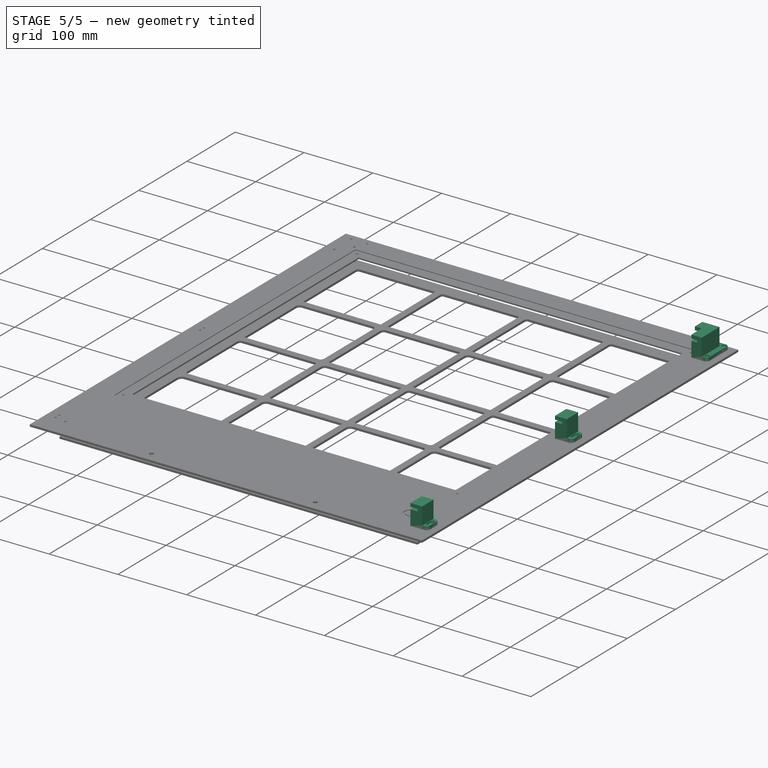
[diagram: stage 5 of 5 — iso view after this stage's code; geometry added in this stage tinted green]
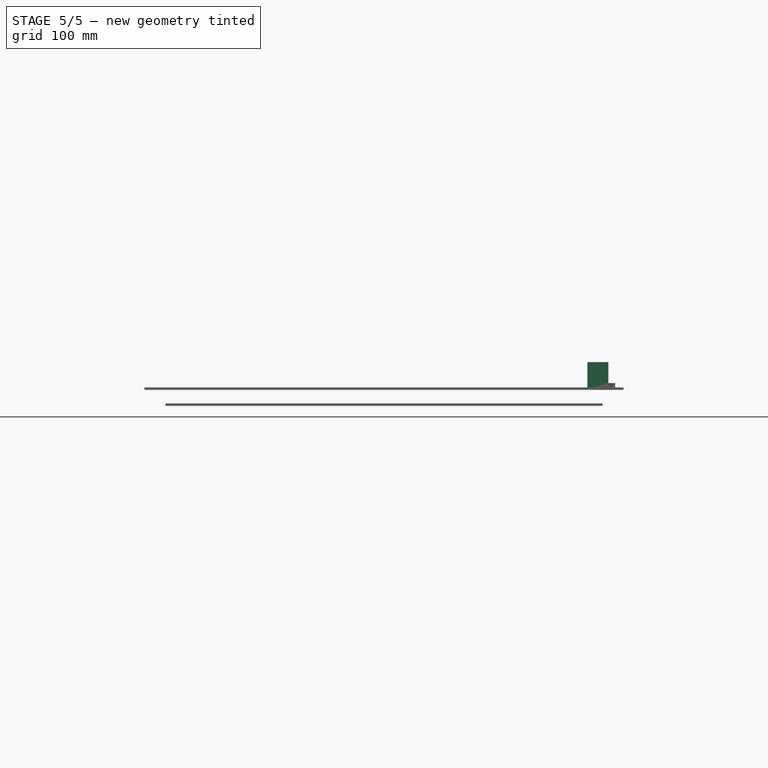
[diagram: stage 5 of 5 — front view after this stage's code; geometry added in this stage tinted green]
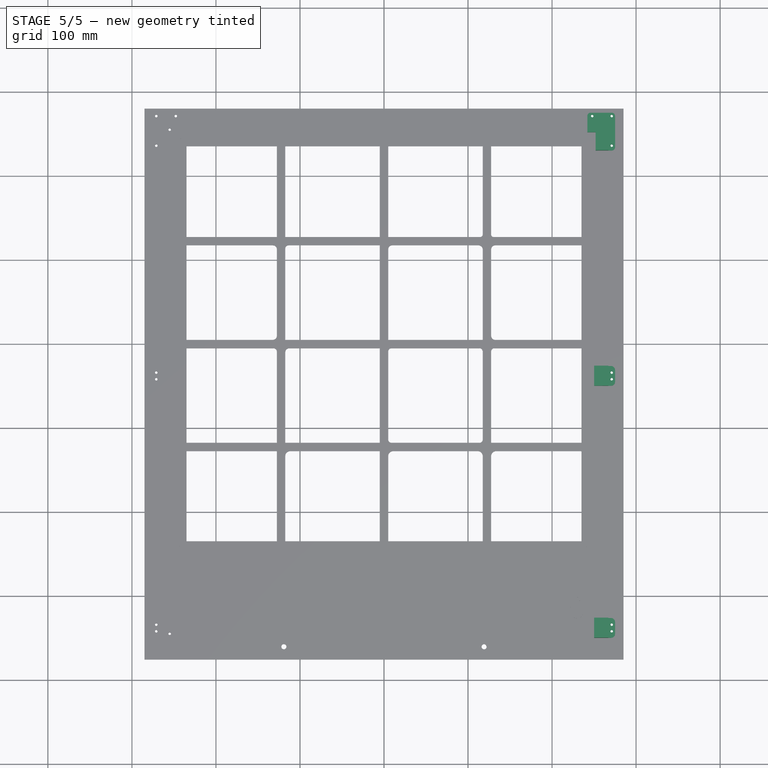
[diagram: stage 5 of 5 — top view after this stage's code; geometry added in this stage tinted green]
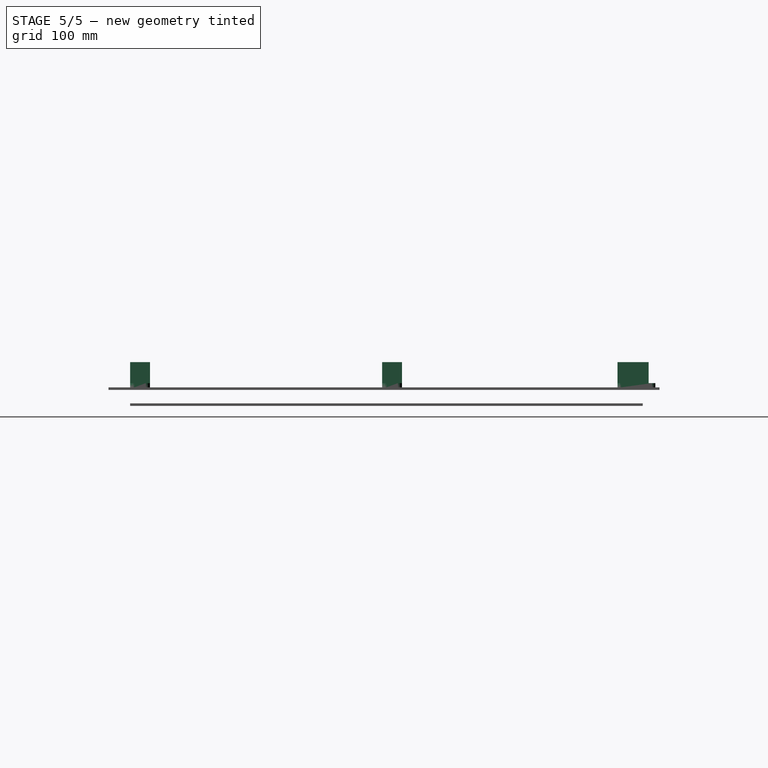
[diagram: stage 5 of 5 — right view after this stage's code; geometry added in this stage tinted green]
FEATURE [Sketcher::SketchObject] Sketch013
  ExternalGeometry = -> [Pocket009]
  MapMode = 5
  Placement = pos=(0,0,5) rot=(0,0,1;0rad)
  Support = -> [Pocket009]
  sketch-geometry (4):
    g0: ArcOfCircle CenterX=-271 CenterY=-334.32 CenterZ=0 NormalX=0 NormalY=0 NormalZ=1 AngleXU=0 Radius=3 StartAngle=-1e-12 EndAngle=3.14159
    g1: ArcOfCircle CenterX=-271 CenterY=-342.207 CenterZ=0 NormalX=0 NormalY=0 NormalZ=1 AngleXU=0 Radius=3 StartAngle=3.14159 EndAngle=6.28319
    g2: LineSegment StartX=-268 StartY=-334.32 StartZ=0 EndX=-268 EndY=-342.207 EndZ=0
    g3: LineSegment StartX=-274 StartY=-334.32 StartZ=0 EndX=-274 EndY=-342.207 EndZ=0
  constraints (8):
    c: Tangent(g0,g2) = 1.5708
    c: Tangent(g2,g1) = 1.5708
    c: Equal(g0,g1)
    c: Coincident(g0,g-3)
    c: Coincident(g1,g-4)
    c: Radius(g0) = 3
    c: Coincident(g3,g0)
    c: Coincident(g3,g1)
FEATURE [PartDesign::Pocket] Pocket010
  BaseFeature = -> Pocket009
  Length = 2
  Length2 = 100
  Profile = -> Sketch013
  Type = 0
FEATURE [Sketcher::SketchObject] Sketch014
  ExternalGeometry = -> [Pocket010]
  MapMode = 5
  Placement = pos=(0,-350.093,0) rot=(1,0,0;1.5708rad)
  Support = -> [Pocket010]
  sketch-geometry (4):
    g0: LineSegment StartX=-260.19 StartY=25 StartZ=0 EndX=-247.832 EndY=25 EndZ=0
    g1: LineSegment StartX=-247.832 StartY=25 StartZ=0 EndX=-247.832 EndY=21.7 EndZ=0
    g2: LineSegment StartX=-247.832 StartY=21.7 StartZ=0 EndX=-260.19 EndY=21.7 EndZ=0
    g3: LineSegment StartX=-260.19 StartY=21.7 StartZ=0 EndX=-260.19 EndY=25 EndZ=0
  constraints (11):
    c: Coincident(g0,g1)
    c: Coincident(g1,g2)
    c: Coincident(g2,g3)
    c: Coincident(g3,g0)
    c: Horizontal(g0)
    c: Horizontal(g2)
    c: Vertical(g1)
    c: Vertical(g3)
    c: DistanceY(g1,g1) = 3.3
    c: DistanceX(g-3,g0) = 6.81
    c: DistanceY(g0,g-3) = 5
FEATURE [PartDesign::Pocket] Pocket011
  BaseFeature = -> Pocket010
  Length = 5
  Length2 = 100
  Profile = -> Sketch014
  Type = 1
FEATURE [PartDesign::Fillet] Fillet004
  Base = -> Pocket011 [Edge36,Edge10]
  BaseFeature = -> Pocket011
  Radius = 5
FEATURE [Sketcher::SketchObject] Sketch025
  ExternalGeometry = -> [Pocket010]
  MapMode = 5
  Placement = pos=(0,230,0) rot=(1,0,0;1.5708rad)
  Support = -> [Fillet005]
  sketch-geometry (4):
    g0: LineSegment StartX=-260.19 StartY=25 StartZ=0 EndX=-238.028 EndY=25 EndZ=0
    g1: LineSegment StartX=-238.028 StartY=25 StartZ=0 EndX=-238.028 EndY=21.7 EndZ=0
    g2: LineSegment StartX=-238.028 StartY=21.7 StartZ=0 EndX=-260.19 EndY=21.7 EndZ=0
    g3: LineSegment StartX=-260.19 StartY=21.7 StartZ=0 EndX=-260.19 EndY=25 EndZ=0
  constraints (11):
    c: Coincident(g0,g1)
    c: Coincident(g1,g2)
    c: Coincident(g2,g3)
    c: Coincident(g3,g0)
    c: Horizontal(g0)
    c: Horizontal(g2)
    c: Vertical(g1)
    c: Vertical(g3)
    c: DistanceY(g1,g1) = 3.3
    c: DistanceX(g-3,g0) = 6.81
    c: DistanceY(g0,g-3) = 5
FEATURE [PartDesign::Pocket] Pocket015
  BaseFeature = -> Fillet005
  Length = 30
  Length2 = 100
  Profile = -> Sketch025
  Type = 0
FEATURE [Sketcher::SketchObject] Sketch026
  MapMode = 5
  Placement = pos=(0,0,30) rot=(0,0,1;0rad)
  Support = -> [Pocket015]
  sketch-geometry (4):
    g0: LineSegment StartX=-251.89 StartY=251.616 StartZ=0 EndX=-236.08 EndY=251.616 EndZ=0
    g1: LineSegment StartX=-236.08 StartY=251.616 StartZ=0 EndX=-236.08 EndY=226.125 EndZ=0
    g2: LineSegment StartX=-236.08 StartY=226.125 StartZ=0 EndX=-251.89 EndY=226.125 EndZ=0
    g3: LineSegment StartX=-251.89 StartY=226.125 StartZ=0 EndX=-251.89 EndY=251.616 EndZ=0
  constraints (8):
    c: Coincident(g0,g1)
    c: Coincident(g1,g2)
    c: Coincident(g2,g3)
    c: Coincident(g3,g0)
    c: Horizontal(g0)
    c: Horizontal(g2)
    c: Vertical(g1)
    c: Vertical(g3)
FEATURE [PartDesign::Pocket] Pocket016
  BaseFeature = -> Pocket015
  Length = 5
  Length2 = 100
  Profile = -> Sketch026
  Type = 1
FEATURE [Part::Mirroring] Part__Mirroring001  label="Fillet004 (Mirror #2)"
  Base = (0,0,0)
  Normal = (1,0,0)
  Placement = pos=(0,0,3) rot=(0,0,1;0rad)
  Source = -> Fillet004
FEATURE [Part::Mirroring] Part__Mirroring002  label="Pocket016 (Mirror #3)"
  Base = (0,0,0)
  Normal = (1,0,0)
  Placement = pos=(0,0,3) rot=(0,0,1;0rad)
  Source = -> Pocket016
FEATURE [PartDesign::Body] CloneBody
  Group = -> [Clone]
  Origin = -> Origin006
  Tip = -> Clone
FEATURE [Part::Mirroring] Part__Mirroring  label="Clone (Mirror #1)"
  Base = (0,0,0)
  Normal = (1,0,0)
  Source = -> CloneBody
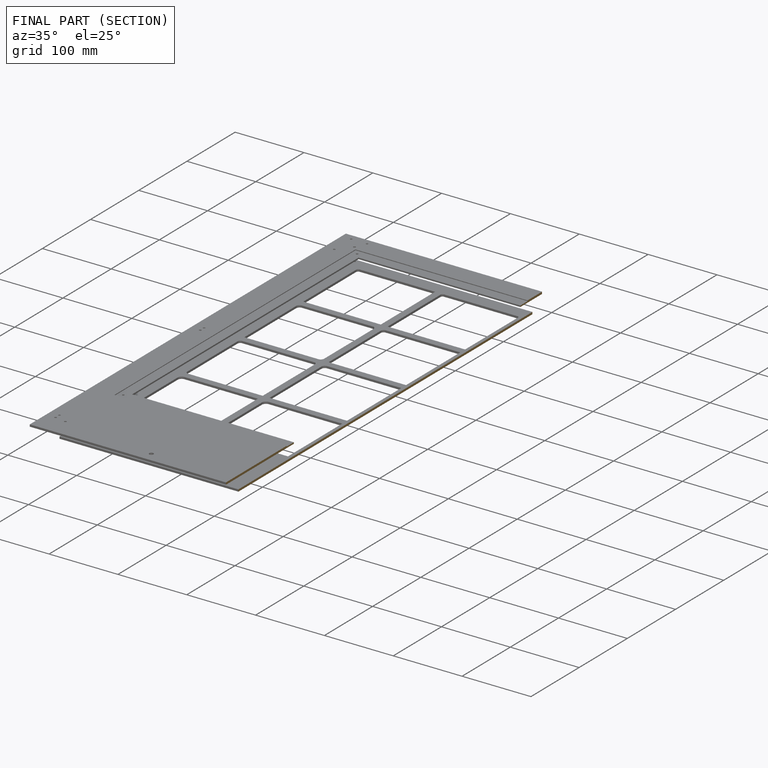
[diagram: finished part — half-section view (interior)]
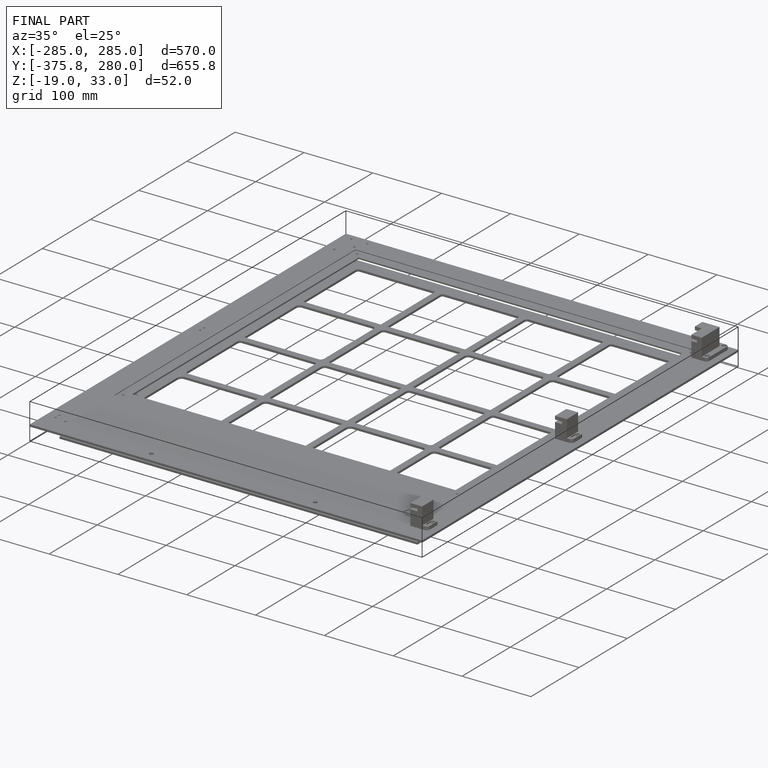
[diagram: finished part — iso view with bounding-box wireframe]
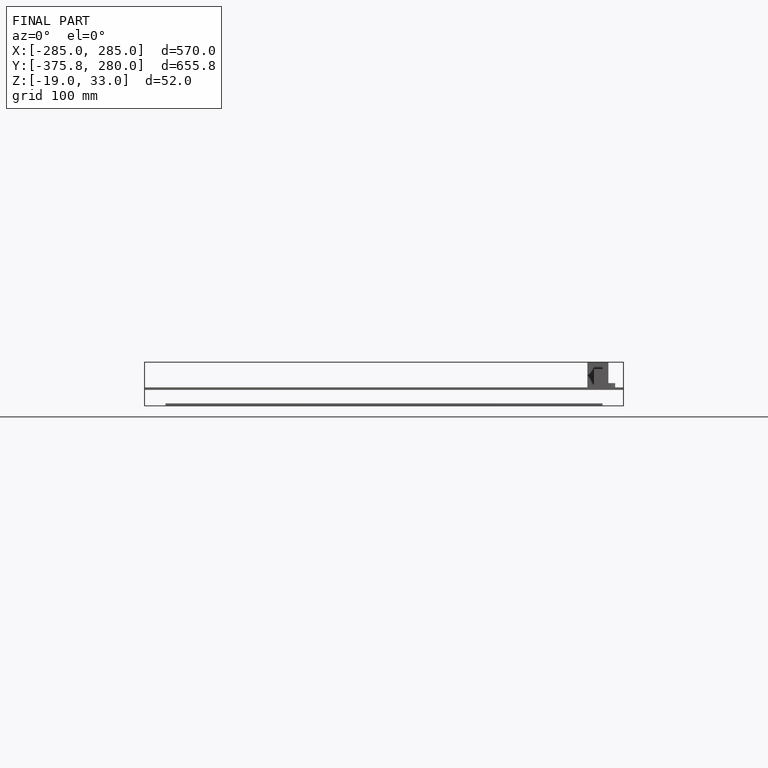
[diagram: finished part — front view with bounding-box wireframe]
